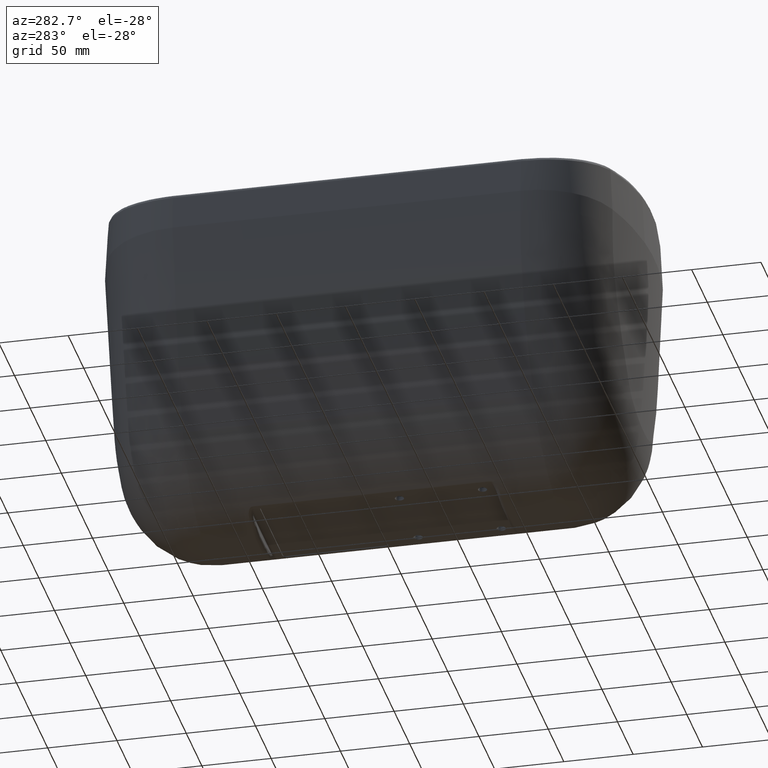
[diagram: clean part render]
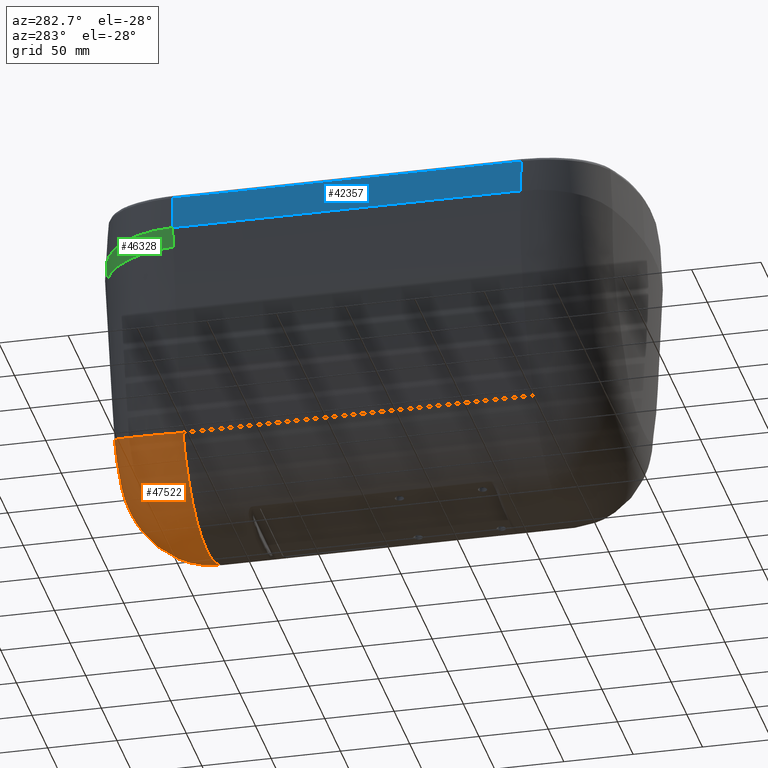
[diagram: same view with three faces highlighted in distinct colors, each labeled with its STEP entity id]
A machine part, auxiliary view with three faces highlighted in distinct colors.
Their STEP definitions:

[orange] entity #47522 — the highlighted face is a freeform B-spline surface patch.
#30 = CARTESIAN_POINT ( 'NONE',  ( -8.356609729435103162, 178.7378432442207270, 82.35189165917812204 ) ) ;
#33 = VERTEX_POINT ( 'NONE', #10194 ) ;
#93 = CARTESIAN_POINT ( 'NONE',  ( 11.99914758872700737, 238.4567949841419932, 140.1456955980215184 ) ) ;
#345 = CARTESIAN_POINT ( 'NONE',  ( -25.69821328772304625, 178.6053747279220829, 85.61473924286335091 ) ) ;
#399 = CARTESIAN_POINT ( 'NONE',  ( 19.82179163720726578, 238.0918920766039548, 142.5243388657668788 ) ) ;
#656 = CARTESIAN_POINT ( 'NONE',  ( 68.29882048393949390, 177.7858122185426737, 111.8070781136158303 ) ) ;
#716 = CARTESIAN_POINT ( 'NONE',  ( 26.10110422733500002, 237.6806247858925758, 145.5552018956837230 ) ) ;
#787 = CIRCLE ( 'NONE', #62577, 60.00000000000017053 ) ;
#807 = CARTESIAN_POINT ( 'NONE',  ( -29.03025176473818902, 237.4608524363164292, 147.3636871278205831 ) ) ;
#971 = CARTESIAN_POINT ( 'NONE',  ( 68.07137316774266367, 177.7914235830023699, 111.5625866501684840 ) ) ;
#1033 = CARTESIAN_POINT ( 'NONE',  ( 35.68553931012947089, 236.9103020670223430, 153.2186687049396880 ) ) ;
#1127 = CARTESIAN_POINT ( 'NONE',  ( -65.52577416411179456, 177.8542120993895139, 108.8053185208835458 ) ) ;
#1291 = CARTESIAN_POINT ( 'NONE',  ( 74.49531063799382480, 177.6337440974745050, 119.0615013108570679 ) ) ;
#1354 = CARTESIAN_POINT ( 'NONE',  ( 9.240399843247717016, 238.5439887203830551, 139.6109537909586038 ) ) ;
#1658 = CARTESIAN_POINT ( 'NONE',  ( -31.71994218773083318, 237.2417055706836777, 149.4374117347017830 ) ) ;
#1779 = CARTESIAN_POINT ( 'NONE',  ( -41.29650359216168454, 178.3805073719095731, 91.54367287190454761 ) ) ;
#1983 = CARTESIAN_POINT ( 'NONE',  ( -29.51087996153707493, 237.4206237487736360, 147.7466123806438816 ) ) ;
#2101 = CARTESIAN_POINT ( 'NONE',  ( 30.44364865150281219, 237.3470389657274495, 148.3832084939375875 ) ) ;
#2351 = CARTESIAN_POINT ( 'NONE',  ( -69.10905732830528336, 177.7658272156934061, 112.6908660159244846 ) ) ;
#2419 = CARTESIAN_POINT ( 'NONE',  ( 52.23241189137571894, 178.1645660663755280, 97.90305462514852763 ) ) ;
#2618 = CARTESIAN_POINT ( 'NONE',  ( -28.16629217424036469, 237.5257508376925273, 146.8285486036618863 ) ) ;
#2728 = CARTESIAN_POINT ( 'NONE',  ( -8.613161386113747042, 178.7401546675445729, 82.30053761024456094 ) ) ;
#2931 = CARTESIAN_POINT ( 'NONE',  ( -31.80310951166093147, 237.2348412980680337, 149.5060697768892339 ) ) ;
#2978 = CARTESIAN_POINT ( 'NONE',  ( -78.85715913692804691, 177.5323525168562355, 125.5529765013814796 ) ) ;
#3050 = CARTESIAN_POINT ( 'NONE',  ( -4.008552066298440408, 238.6523142779094542, 138.9670959771395644 ) ) ;
#3253 = CARTESIAN_POINT ( 'NONE',  ( -19.24636826107417065, 238.1237709001973712, 142.3097347192446023 ) ) ;
#3295 = CARTESIAN_POINT ( 'NONE',  ( -60.34926128272552859, 177.9787396995295126, 104.1916314549005307 ) ) ;
#3352 = CARTESIAN_POINT ( 'NONE',  ( 5.698535679288098343, 238.6218953460856085, 139.1452468938524305 ) ) ;
#3566 = CARTESIAN_POINT ( 'NONE',  ( -16.22231540458919952, 238.2798575007390411, 141.2732703954705187 ) ) ;
#3890 = CARTESIAN_POINT ( 'NONE',  ( -2.771346740054393187, 238.6590081537335379, 138.9274849257798792 ) ) ;
#3930 = CARTESIAN_POINT ( 'NONE',  ( -48.71065201909603104, 178.2361351225804356, 95.75065592255177194 ) ) ;
#3990 = CARTESIAN_POINT ( 'NONE',  ( 6.188451601845880390, 238.6130968994292800, 139.1973382719241386 ) ) ;
#4206 = CARTESIAN_POINT ( 'NONE',  ( -8.520755868152775747, 238.5619435219322497, 139.5066591760454457 ) ) ;
#4253 = CARTESIAN_POINT ( 'NONE',  ( 25.16936946107423978, 178.6113320467006815, 85.46476588711529132 ) ) ;
#4560 = CARTESIAN_POINT ( 'NONE',  ( -26.85267878323819346, 178.5919767561847209, 85.95220833889871415 ) ) ;
#4621 = CARTESIAN_POINT ( 'NONE',  ( 6.417484885078757806, 238.6087642246419591, 139.2230217147114502 ) ) ;
#4881 = CARTESIAN_POINT ( 'NONE',  ( -10.46257935078042678, 178.7288882527476801, 82.56483461160958370 ) ) ;
#4942 = CARTESIAN_POINT ( 'NONE',  ( 37.36164856560456116, 236.7728369421467960, 155.2296541787534920 ) ) ;
#5195 = CARTESIAN_POINT ( 'NONE',  ( -49.36260667152334491, 178.2227582739471643, 96.15412447818719954 ) ) ;
#5254 = CARTESIAN_POINT ( 'NONE',  ( 24.36775074462318003, 237.8032068245078676, 144.6068532074451412 ) ) ;
#5507 = CARTESIAN_POINT ( 'NONE',  ( 58.50924701133732952, 178.0218139474591226, 102.6672708082032557 ) ) ;
#5563 = CARTESIAN_POINT ( 'NONE',  ( 32.72358169600294531, 237.1585227109183904, 150.2912784277929461 ) ) ;
#5827 = CARTESIAN_POINT ( 'NONE',  ( 59.02429380229824574, 178.0098258747813986, 103.0864945398567585 ) ) ;
#5884 = CARTESIAN_POINT ( 'NONE',  ( 35.68558644008918890, 236.9102981317334411, 153.2187206882006762 ) ) ;
#5977 = CARTESIAN_POINT ( 'NONE',  ( -35.43233561265508769, 234.3812725071525449, 88.85921384581253335 ) ) ;
#6204 = CARTESIAN_POINT ( 'NONE',  ( 35.83090270729898208, 236.8981905796376566, 153.3808038318655633 ) ) ;
#6499 = CARTESIAN_POINT ( 'NONE',  ( -31.61668043743034318, 237.2502220319075548, 149.3523941549221945 ) ) ;
#6775 = CARTESIAN_POINT ( 'NONE',  ( 49.56660966718661143, 178.2187452364850913, 96.27354354055201213 ) ) ;
#6810 = CARTESIAN_POINT ( 'NONE',  ( -29.16325976623350513, 237.4481106784027133, 147.5017375719192501 ) ) ;
#7128 = CARTESIAN_POINT ( 'NONE',  ( -34.42632477949241832, 237.0157471389924524, 151.8651549750143488 ) ) ;
#7204 = CARTESIAN_POINT ( 'NONE',  ( 82.98892329264937473, 177.4483188869874652, 132.8417682641259603 ) ) ;
#7239 = CARTESIAN_POINT ( 'NONE',  ( 9.824497425057780120, 238.5317250507614233, 139.6885066157705921 ) ) ;
#7449 = CARTESIAN_POINT ( 'NONE',  ( -31.85452162667694864, 237.2305943942271824, 149.5486228059067173 ) ) ;
#7472 = CARTESIAN_POINT ( 'NONE',  ( 38.31144041404096612, 236.6981624156462374, 156.5240854501115280 ) ) ;
#7765 = CARTESIAN_POINT ( 'NONE',  ( -35.77026001587612569, 236.9031706273804900, 153.3057663753950521 ) ) ;
#7813 = CARTESIAN_POINT ( 'NONE',  ( -68.42361118416430088, 177.7827343374216298, 111.9418940096296637 ) ) ;
#7881 = CARTESIAN_POINT ( 'NONE',  ( 74.09054942279881573, 177.6429719785025441, 118.0532047334085490 ) ) ;
#7965 = VERTEX_POINT ( 'NONE', #21134 ) ;
#8086 = CARTESIAN_POINT ( 'NONE',  ( -6.588468263841231298, 238.6068256470684048, 139.2371469374431854 ) ) ;
#8135 = CARTESIAN_POINT ( 'NONE',  ( -68.50828113547336784, 177.7806458683036226, 112.0336520463738452 ) ) ;
#8408 = CARTESIAN_POINT ( 'NONE',  ( -23.57606220694902888, 237.8569862205298762, 144.2037289672453824 ) ) ;
#8450 = CARTESIAN_POINT ( 'NONE',  ( -59.97784353840775395, 177.9874936877782261, 103.8768084166491548 ) ) ;
#8523 = CARTESIAN_POINT ( 'NONE',  ( 4.533120516609243644, 235.6910522558075058, 81.99828543797757163 ) ) ;
#8716 = CARTESIAN_POINT ( 'NONE',  ( -12.85601776218024916, 238.4253297255926611, 140.3447909249087786 ) ) ;
#9042 = CARTESIAN_POINT ( 'NONE',  ( -14.89780589757324947, 238.3409727189547596, 140.8785231727618736 ) ) ;
#9084 = CARTESIAN_POINT ( 'NONE',  ( 22.57326704663237038, 178.6388533273572534, 84.77477572474366241 ) ) ;
#9193 =( BOUNDED_SURFACE ( )  B_SPLINE_SURFACE ( 3, 2, ( 
 ( #36262, #21116, #10489 ),
 ( #49815, #11435, #59817 ),
 ( #20473, #26572, #44997 ),
 ( #31402, #50780, #1127 ),
 ( #807, #20154, #31088 ),
 ( #25930, #51097, #26241 ),
 ( #40123, #15617, #35296 ),
 ( #54994, #11106, #60119 ),
 ( #10799, #30454, #1779 ),
 ( #39802, #5977, #21447 ),
 ( #41080, #25609, #45312 ),
 ( #40438, #15926, #45629 ),
 ( #60460, #51420, #52687 ),
 ( #3050, #17537, #2728 ),
 ( #62381, #32700, #46886 ),
 ( #41403, #8523, #57200 ),
 ( #32369, #57518, #37510 ),
 ( #52049, #21765, #61097 ),
 ( #7239, #46269, #37188 ),
 ( #41714, #46583, #42364 ),
 ( #12387, #26896, #52378 ),
 ( #32054, #16896, #2419 ),
 ( #31721, #27530, #22073 ),
 ( #56258, #36572, #12061 ),
 ( #2101, #51737, #61418 ),
 ( #17224, #37826, #7881 ),
 ( #22711, #56577, #22392 ),
 ( #61739, #36884, #12696 ) ),
 .UNSPECIFIED., .F., .F., .T. ) 
 B_SPLINE_SURFACE_WITH_KNOTS ( ( 4, 2, 2, 2, 2, 2, 2, 2, 2, 2, 2, 2, 2, 4 ),
 ( 3, 3 ),
 ( 0.0000000000000000000, 0.1250000000000000000, 0.1875000000000000000, 0.2500000000000000000, 0.3125000000000000000, 0.3750000000000000000, 0.4375000000000000000, 0.5000000000000000000, 0.5625000000000000000, 0.6250000000000000000, 0.7500000000000000000, 0.8125000000000000000, 0.8750000000000000000, 1.000000000000000000 ),
 ( 0.0000000000000000000, 1.000000000000000000 ),
 .UNSPECIFIED. ) 
 GEOMETRIC_REPRESENTATION_ITEM ( )  RATIONAL_B_SPLINE_SURFACE ( (
 ( 1.000000000000000000, 0.7610631982911010285, 1.000000000000000000),
 ( 1.000000000000000000, 0.7582905065582149495, 1.000000000000000000),
 ( 1.000000000000000000, 0.7546436458247970380, 1.000000000000000000),
 ( 1.000000000000000000, 0.7486570151162530440, 1.000000000000000000),
 ( 1.000000000000000000, 0.7465650749523590202, 1.000000000000000000),
 ( 1.000000000000000000, 0.7424750316851910226, 1.000000000000000000),
 ( 1.000000000000000000, 0.7404632805369290027, 1.000000000000000000),
 ( 1.000000000000000000, 0.7366449619953280292, 1.000000000000000000),
 ( 1.000000000000000000, 0.7348320347848309453, 1.000000000000000000),
 ( 1.000000000000000000, 0.7315779320212090209, 1.000000000000000000),
 ( 1.000000000000000000, 0.7301617568582370321, 1.000000000000000000),
 ( 1.000000000000000000, 0.7278368164283790520, 1.000000000000000000),
 ( 1.000000000000000000, 0.7269278738270309459, 1.000000000000000000),
 ( 1.000000000000000000, 0.7256944887755070184, 1.000000000000000000),
 ( 1.000000000000000000, 0.7253759701025900286, 1.000000000000000000),
 ( 1.000000000000000000, 0.7253727842152649652, 1.000000000000000000),
 ( 1.000000000000000000, 0.7256812352238489749, 1.000000000000000000),
 ( 1.000000000000000000, 0.7268923655680920026, 1.000000000000000000),
 ( 1.000000000000000000, 0.7278029741766079974, 1.000000000000000000),
 ( 1.000000000000000000, 0.7313152109039909865, 1.000000000000000000),
 ( 1.000000000000000000, 0.7346408664462019678, 1.000000000000000000),
 ( 1.000000000000000000, 0.7404061963985359984, 1.000000000000000000),
 ( 1.000000000000000000, 0.7424498854873230469, 1.000000000000000000),
 ( 1.000000000000000000, 0.7465306470970139996, 1.000000000000000000),
 ( 1.000000000000000000, 0.7485821506141040471, 1.000000000000000000),
 ( 1.000000000000000000, 0.7545563303009420464, 1.000000000000000000),
 ( 1.000000000000000000, 0.7583150266325430211, 1.000000000000000000),
 ( 1.000000000000000000, 0.7610631982911010285, 1.000000000000000000) ) ) 
 REPRESENTATION_ITEM ( '' )  SURFACE ( )  );
#9406 = CARTESIAN_POINT ( 'NONE',  ( -25.34405903696672624, 178.6093769573539873, 85.51397600573639579 ) ) ;
#9721 = CARTESIAN_POINT ( 'NONE',  ( 28.70426026251554319, 178.5718170729978453, 86.45922785572993519 ) ) ;
#9785 = CARTESIAN_POINT ( 'NONE',  ( 24.45765630092467902, 237.7970062345978022, 144.6538280603151918 ) ) ;
#10029 = CARTESIAN_POINT ( 'NONE',  ( -48.92230900384691239, 178.2318142962554361, 95.88082872009826474 ) ) ;
#10043 = EDGE_CURVE ( 'NONE', #7965, #46041, #44734, .T. ) ;
#10083 = CARTESIAN_POINT ( 'NONE',  ( 24.80169355019150856, 237.7731780894810356, 144.8349407025474704 ) ) ;
#10194 = CARTESIAN_POINT ( 'NONE',  ( -38.62291730448687588, 236.6748206272834523, 156.9902970483955187 ) ) ;
#10344 = CARTESIAN_POINT ( 'NONE',  ( 46.74536386492031426, 178.2755290327962996, 94.57402962401397417 ) ) ;
#10401 = CARTESIAN_POINT ( 'NONE',  ( 15.76934935055396636, 238.3011027295546285, 141.1330107860980263 ) ) ;
#10489 = CARTESIAN_POINT ( 'NONE',  ( -82.98892329264909051, 177.4483188869874652, 132.8417682641255624 ) ) ;
#10652 = CARTESIAN_POINT ( 'NONE',  ( 67.17373191920043496, 177.8135836873005644, 110.6138032442633374 ) ) ;
#10710 = CARTESIAN_POINT ( 'NONE',  ( 24.43114005333751138, 237.7988365960080159, 144.6399521722762529 ) ) ;
#10799 = CARTESIAN_POINT ( 'NONE',  ( -19.21932927813508840, 238.1294088671874078, 142.2652185731445513 ) ) ;
#11015 = CARTESIAN_POINT ( 'NONE',  ( 24.01941630374778569, 237.8270682810197911, 144.4270042806593040 ) ) ;
#11106 = CARTESIAN_POINT ( 'NONE',  ( -47.36307490533059195, 233.3324077987304577, 94.78082408836053219 ) ) ;
#11275 = CARTESIAN_POINT ( 'NONE',  ( 68.24875930347529618, 177.7870469916968830, 111.7531365527515277 ) ) ;
#11435 = CARTESIAN_POINT ( 'NONE',  ( -79.96660830596907488, 229.0757373874994869, 126.6734639951325505 ) ) ;
#11595 = CARTESIAN_POINT ( 'NONE',  ( 48.56391261573578788, 178.2391200896961436, 95.66082180369282639 ) ) ;
#11638 = CARTESIAN_POINT ( 'NONE',  ( -32.85433562680233166, 237.1476109410754702, 150.3987696631218967 ) ) ;
#11944 = CARTESIAN_POINT ( 'NONE',  ( -27.89390314911350899, 237.5466459540000130, 146.6516323460211879 ) ) ;
#12061 = CARTESIAN_POINT ( 'NONE',  ( 62.32383960290591318, 177.9328076530025555, 105.7897762043345296 ) ) ;
#12272 = CARTESIAN_POINT ( 'NONE',  ( -35.49141499419226875, 236.9264216140860526, 152.9988145566159119 ) ) ;
#12295 = CARTESIAN_POINT ( 'NONE',  ( 38.50932090208902281, 236.6833101821859771, 156.8196976389469057 ) ) ;
#12315 = CARTESIAN_POINT ( 'NONE',  ( -68.46492772929909165, 177.7817152253309700, 111.9866429415958891 ) ) ;
#12387 = CARTESIAN_POINT ( 'NONE',  ( 19.20958482752221030, 238.1401388756834194, 142.1448642654685841 ) ) ;
#12589 = CARTESIAN_POINT ( 'NONE',  ( -28.04426866117818662, 237.5351364582997462, 146.7487734694151982 ) ) ;
#12633 = CARTESIAN_POINT ( 'NONE',  ( -82.07128734430581574, 177.4648589971527031, 131.0418908614740019 ) ) ;
#12696 = CARTESIAN_POINT ( 'NONE',  ( 82.98892329264901946, 177.4483188869874652, 132.8417682641255624 ) ) ;
#12950 = CARTESIAN_POINT ( 'NONE',  ( -76.44234108545765594, 177.5875886523986935, 121.9177872978415706 ) ) ;
#13226 = CARTESIAN_POINT ( 'NONE',  ( -23.27136969906479180, 237.8772688893466523, 144.0539037857755034 ) ) ;
#13271 = CARTESIAN_POINT ( 'NONE',  ( -59.13686745344639206, 178.0071971100335873, 103.1788386732248739 ) ) ;
#13544 = CARTESIAN_POINT ( 'NONE',  ( -21.25269715871091236, 238.0070819546884309, 143.1150387899342888 ) ) ;
#13584 = CARTESIAN_POINT ( 'NONE',  ( -76.42728127478378042, 177.5879415963356109, 121.8961729227911945 ) ) ;
#13844 = CARTESIAN_POINT ( 'NONE',  ( -8.969559286918366681, 238.5502304667199382, 139.5774543655009836 ) ) ;
#13886 = CARTESIAN_POINT ( 'NONE',  ( -25.36444944750225972, 178.6091479372806248, 85.51974196622003888 ) ) ;
#14176 = CARTESIAN_POINT ( 'NONE',  ( -16.07155983554289591, 238.2870255653239440, 141.2266674661400998 ) ) ;
#14211 = CARTESIAN_POINT ( 'NONE',  ( -32.58091413304574502, 178.5171351375384745, 87.86130406442134699 ) ) ;
#14273 = CARTESIAN_POINT ( 'NONE',  ( 6.324031961673013846, 238.6105495653839341, 139.2124348711439268 ) ) ;
#14488 = CARTESIAN_POINT ( 'NONE',  ( -16.31387933702918858, 238.2754859341043812, 141.3017185171872825 ) ) ;
#14532 = CARTESIAN_POINT ( 'NONE',  ( -48.70589836794948013, 178.2362319369396459, 95.74773993249833381 ) ) ;
#14834 = CARTESIAN_POINT ( 'NONE',  ( -48.75753144495976699, 178.2351798102819771, 95.77943066630156466 ) ) ;
#14894 = CARTESIAN_POINT ( 'NONE',  ( 16.66751729238256274, 238.2588554928400981, 141.4074651590352687 ) ) ;
#15153 = CARTESIAN_POINT ( 'NONE',  ( 24.76312603156899073, 178.6158328446582004, 85.35156958721822207 ) ) ;
#15217 = CARTESIAN_POINT ( 'NONE',  ( 15.27958019096118569, 238.3234469147970742, 140.9887131239643168 ) ) ;
#15462 = CARTESIAN_POINT ( 'NONE',  ( 68.27799529580533999, 177.7863258555612447, 111.7846297644749001 ) ) ;
#15523 = CARTESIAN_POINT ( 'NONE',  ( 7.810173574246149109, 238.5794111105941795, 139.3978950248020396 ) ) ;
#15617 = CARTESIAN_POINT ( 'NONE',  ( -54.59234332075449458, 232.5545282310634434, 99.50144328451453646 ) ) ;
#15770 = CARTESIAN_POINT ( 'NONE',  ( 65.89773933146896923, 177.8450275692531761, 109.3063830807752197 ) ) ;
#15831 = CARTESIAN_POINT ( 'NONE',  ( 36.93802591485984266, 236.8070262510756550, 154.6900784709830532 ) ) ;
#15926 = CARTESIAN_POINT ( 'NONE',  ( -22.67284843816058526, 235.1676078698284300, 84.67815403921956374 ) ) ;
#16092 = CARTESIAN_POINT ( 'NONE',  ( 58.99477929019068512, 178.0105145931393338, 103.0623309761662370 ) ) ;
#16125 = DIRECTION ( 'NONE',  ( -0.4540875050644065380, 0.02299789865196168182, -0.8906602238800027660 ) ) ;
#16158 = CARTESIAN_POINT ( 'NONE',  ( 15.91402953484340621, 238.2943775640358126, 141.1765956519220708 ) ) ;
#16457 = CARTESIAN_POINT ( 'NONE',  ( -30.07493115519371685, 237.3755907494322912, 148.1561012004922873 ) ) ;
#16738 = CARTESIAN_POINT ( 'NONE',  ( 82.98892329264937473, 177.4483188869874652, 132.8417682641259603 ) ) ;
#16874 = AXIS2_PLACEMENT_3D ( 'NONE', #27191, #42992, #18489 ) ;
#16896 = CARTESIAN_POINT ( 'NONE',  ( 54.49403765285401136, 232.5660737922784449, 99.42859645124757151 ) ) ;
#17105 = CARTESIAN_POINT ( 'NONE',  ( -35.47940679275190234, 236.9274237511886838, 152.9856903635904644 ) ) ;
#17130 = CARTESIAN_POINT ( 'NONE',  ( 37.86556240135427487, 236.7328396826174526, 155.9015131168409312 ) ) ;
#17148 = CARTESIAN_POINT ( 'NONE',  ( -69.39731059878009489, 177.7587183368019907, 113.0118073701117254 ) ) ;
#17224 = CARTESIAN_POINT ( 'NONE',  ( 34.48162778662750583, 237.0138411573304325, 151.7195856900665376 ) ) ;
#17424 = CARTESIAN_POINT ( 'NONE',  ( -35.42786103286746169, 236.9317264766178255, 152.9294457155386908 ) ) ;
#17537 = CARTESIAN_POINT ( 'NONE',  ( -9.229377911328457529, 235.6224493069254606, 82.34412114277357375 ) ) ;
#17748 = CARTESIAN_POINT ( 'NONE',  ( -35.37451746445071166, 236.9361832492638200, 152.8716119229591186 ) ) ;
#18384 = CARTESIAN_POINT ( 'NONE',  ( -11.95740570959017823, 238.4583558070142431, 140.1397205193564730 ) ) ;
#18489 = DIRECTION ( 'NONE',  ( -0.8908958539379464581, 0.0000000000000000000, -0.4542076369196991203 ) ) ;
#18699 = CARTESIAN_POINT ( 'NONE',  ( -1.673530197073406445, 238.6664217672055202, 138.8838217694035677 ) ) ;
#18741 = CARTESIAN_POINT ( 'NONE',  ( -48.70604745891454002, 178.2362289015313195, 95.74783135502272557 ) ) ;
#19015 = CARTESIAN_POINT ( 'NONE',  ( -23.33320396465530777, 237.8731678143174690, 144.0841268546701031 ) ) ;
#19060 = CARTESIAN_POINT ( 'NONE',  ( 32.43818993658562988, 178.5214061090902078, 87.72663556038340005 ) ) ;
#19345 = CARTESIAN_POINT ( 'NONE',  ( -23.98524720966109669, 237.8295079535741650, 144.4078923903814200 ) ) ;
#19381 = CARTESIAN_POINT ( 'NONE',  ( 20.98009753528391386, 178.6544187776121646, 84.38677186843830214 ) ) ;
#19703 = CARTESIAN_POINT ( 'NONE',  ( -49.80309988109414121, 178.2136297968191911, 96.43051133590890345 ) ) ;
#19758 = CARTESIAN_POINT ( 'NONE',  ( 15.46047671555784042, 238.3152522977075023, 141.0415507129091566 ) ) ;
#20008 = CARTESIAN_POINT ( 'NONE',  ( -25.32517695188734663, 178.6095889253633686, 85.50863935018708162 ) ) ;
#20067 = CARTESIAN_POINT ( 'NONE',  ( 32.15153204082835714, 237.2060479767991978, 149.7981373691606279 ) ) ;
#20154 = CARTESIAN_POINT ( 'NONE',  ( -64.37269992771157945, 231.3342346955774929, 107.6351252140495518 ) ) ;
#20380 = CARTESIAN_POINT ( 'NONE',  ( 28.12585626479233269, 237.5315855736797062, 146.7536085322895758 ) ) ;
#20473 = CARTESIAN_POINT ( 'NONE',  ( -34.53787401750629016, 237.0090447371264304, 151.7742422816505723 ) ) ;
#20641 = CARTESIAN_POINT ( 'NONE',  ( 48.45766407600196146, 178.2412769341088961, 95.59599241616172094 ) ) ;
#20706 = CARTESIAN_POINT ( 'NONE',  ( 35.71026442896570785, 236.9082395701715029, 153.2460925631461350 ) ) ;
#20960 = CARTESIAN_POINT ( 'NONE',  ( 79.33297551340071152, 177.5213146965905651, 126.1420274478076919 ) ) ;
#21017 = CARTESIAN_POINT ( 'NONE',  ( 10.17517685983922604, 238.5168520028889247, 139.7758032252793612 ) ) ;
#21116 = CARTESIAN_POINT ( 'NONE',  ( -83.52312111118358473, 228.5746516162944317, 133.8895591488025900 ) ) ;
#21134 = CARTESIAN_POINT ( 'NONE',  ( -9.254454714753848546E-08, 238.6705966188280570, 138.8595510589067317 ) ) ;
#21324 = CARTESIAN_POINT ( 'NONE',  ( -35.56452128167515525, 236.9203221366390437, 153.0788817073125472 ) ) ;
#21447 = CARTESIAN_POINT ( 'NONE',  ( -33.42612656837718532, 178.5079383688855614, 88.09772873218551581 ) ) ;
#21612 = CARTESIAN_POINT ( 'NONE',  ( 59.01358292684064111, 178.0100758432513146, 103.0777230333878691 ) ) ;
#21765 = CARTESIAN_POINT ( 'NONE',  ( 18.06125181618261522, 235.3677579161184781, 83.64781571371352697 ) ) ;
#21963 = CARTESIAN_POINT ( 'NONE',  ( -33.28876030658084773, 237.1112059402314003, 150.7931094866354442 ) ) ;
#22005 = CARTESIAN_POINT ( 'NONE',  ( -68.59481115673361273, 177.7785115069856943, 112.1276448881583576 ) ) ;
#22073 = CARTESIAN_POINT ( 'NONE',  ( 55.74673854381581606, 178.0863308044475275, 100.4012282093385267 ) ) ;
#22123 = B_SPLINE_CURVE_WITH_KNOTS ( 'NONE', 3,
 ( #27141, #12633, #36816, #62625, #2978, #52614, #57756, #22639, #61670, #56510, #57137, #12950, #13584, #52927, #52304, #37752, #27460, #61345, #46516, #42296, #41649, #17148, #2351, #46821, #22005, #8135, #12315, #61995, #22317, #37123, #7813, #32304, #47140, #37443, #32945, #27777, #47448, #3295, #8450, #42612, #62313, #57449, #13271, #28088, #49362, #33879, #29685, #38704, #48404, #63576, #48714, #19703, #5195, #43252, #10029, #34828, #14834, #24201, #59341, #3930, #33570, #14532, #18741, #23582, #38384, #54528, #14211, #28406, #39345, #58073, #4560, #59026, #345, #48076, #53578, #13886, #9406, #24842, #20008, #62945, #29051, #4881, #30, #44525, #43895, #53252, #43570, #24528, #44213, #39660, #19381, #9084, #34192, #58399, #15153, #63255, #28738, #4253, #23886, #53897, #39028, #9721, #19060, #58722, #34504, #29368, #54214, #49040, #10344, #49984, #29997, #50628, #20641, #44834, #60936, #30619, #11595, #59971, #49674, #6775, #55480, #60294, #45793, #55153, #25134, #31242, #50305, #5507, #40923, #36423, #35139, #16092, #21612, #5827, #30934, #54840, #26411, #15770, #55794, #10652, #25454, #45160, #971, #40287, #11275, #15462, #45469, #656, #60627, #30304, #50943, #1291, #20960, #35456, #16738 ),
 .UNSPECIFIED., .F., .F.,
 ( 4, 2, 2, 1, 1, 1, 1, 1, 1, 2, 2, 2, 2, 2, 1, 1, 1, 1, 1, 1, 2, 2, 2, 2, 2, 1, 1, 1, 1, 1, 2, 2, 2, 2, 2, 1, 1, 1, 1, 1, 1, 1, 2, 2, 2, 2, 2, 1, 1, 1, 1, 1, 1, 2, 2, 2, 2, 2, 2, 2, 2, 1, 1, 1, 1, 1, 1, 2, 2, 2, 2, 2, 1, 1, 1, 1, 1, 1, 1, 1, 2, 2, 2, 2, 2, 1, 1, 1, 1, 1, 2, 2, 2, 2, 2, 1, 1, 1, 1, 1, 1, 2, 2, 2, 4 ),
 ( 0.0000000000000000000, 0.03124999999978442244, 0.04687499999967681408, 0.05468749999962284336, 0.05859374999959598984, 0.06054687499958254920, 0.06152343749957576990, 0.06201171874957230046, 0.06225585937457064900, 0.06237792968706981633, 0.06249999999956899754, 0.09374999999938182782, 0.1093749999992883054, 0.1171874999992416067, 0.1210937499992181393, 0.1230468749992063987, 0.1240234374992005145, 0.1245117187491976557, 0.1247558593741962818, 0.1248779296866956712, 0.1249389648429452965, 0.1249999999991949218, 0.1562499999991333044, 0.1718749999991025512, 0.1796874999990873412, 0.1835937499990798194, 0.1855468749990760169, 0.1865234374990741018, 0.1870117187490730193, 0.1872558593740724642, 0.1873779296865721034, 0.1874999999990717703, 0.2187499999989879207, 0.2343749999989459820, 0.2421874999989249710, 0.2460937499989145349, 0.2480468749989093169, 0.2490234374989067079, 0.2495117187489054589, 0.2497558593739050425, 0.2498779296864047095, 0.2499389648426545707, 0.2499694824207795985, 0.2499999999989045985, 0.3124999999989503396, 0.3437499999989731547, 0.3593749999989846455, 0.3671874999989903632, 0.3710937499989931387, 0.3730468749989945820, 0.3740234374989952482, 0.3745117187489956367, 0.3747558593739958033, 0.3748779296864959143, 0.3749999999989960253, 0.4374999999990634159, 0.4687499999990971111, 0.4999999999991308064, 0.5624999999991980859, 0.5937499999992318367, 0.6093749999992487121, 0.6171874999992570388, 0.6210937499992613686, 0.6230468749992633670, 0.6240234374992644772, 0.6245117187492649213, 0.6247558593742652544, 0.6248779296867653654, 0.6249999999992653654, 0.6874999999992909006, 0.7187499999993037791, 0.7343749999993101074, 0.7421874999993132160, 0.7460937499993148814, 0.7480468749993155475, 0.7490234374993159916, 0.7495117187493159916, 0.7497558593743159916, 0.7498779296868161026, 0.7499389648430659916, 0.7499694824211909916, 0.7499999999993159916, 0.7812499999994036992, 0.7968749999994474420, 0.8046874999994693134, 0.8085937499994801936, 0.8105468749994857447, 0.8115234374994885203, 0.8120117187494899635, 0.8122558593744906297, 0.8123779296869908517, 0.8124999999994910738, 0.8437499999995728972, 0.8593749999996136424, 0.8671874999996338484, 0.8710937499996439515, 0.8730468749996489475, 0.8740234374996515010, 0.8745117187496526112, 0.8747558593746531663, 0.8748779296871536104, 0.8749389648434037214, 0.8749999999996538325, 0.9374999999998269162, 1.000000000000000000 ),
 .UNSPECIFIED. ) ;
#22273 = CARTESIAN_POINT ( 'NONE',  ( -35.50056096569412034, 236.9256583920117123, 153.0088148570631006 ) ) ;
#22317 = CARTESIAN_POINT ( 'NONE',  ( -68.43392467583439043, 177.7824799456444111, 111.9530598470890794 ) ) ;
#22392 = CARTESIAN_POINT ( 'NONE',  ( 79.09460889414300766, 177.5185127253735686, 125.2033485865335365 ) ) ;
#22594 = CARTESIAN_POINT ( 'NONE',  ( -28.40130160978601026, 237.5076247526147881, 146.9832688317521843 ) ) ;
#22639 = CARTESIAN_POINT ( 'NONE',  ( -76.96450877812375779, 177.5754047030035281, 122.6742549527109816 ) ) ;
#22711 = CARTESIAN_POINT ( 'NONE',  ( 36.81109136285091665, 236.8102262870764321, 154.2692915506445672 ) ) ;
#22913 = CARTESIAN_POINT ( 'NONE',  ( -23.22347812652358456, 237.8804374115787823, 144.0305865022783962 ) ) ;
#23011 = CARTESIAN_POINT ( 'NONE',  ( 6.569895181008586604, 238.6058238228802963, 139.2404655137465852 ) ) ;
#23227 = CARTESIAN_POINT ( 'NONE',  ( -23.36616736058967092, 237.8709793081698081, 144.1002650668146714 ) ) ;
#23539 = CARTESIAN_POINT ( 'NONE',  ( -9.298425688703224168, 238.5413251793086147, 139.6314056585264893 ) ) ;
#23582 = CARTESIAN_POINT ( 'NONE',  ( -44.50781750972815587, 178.3217230132098052, 93.17281803066619261 ) ) ;
#23843 = CARTESIAN_POINT ( 'NONE',  ( -9.957850781935610129, 238.5228330427934225, 139.7436990111940815 ) ) ;
#23886 = CARTESIAN_POINT ( 'NONE',  ( 25.19423910092338659, 178.6110544488461187, 85.47175135962311288 ) ) ;
#24160 = CARTESIAN_POINT ( 'NONE',  ( -24.29181390493433312, 237.8085371164633273, 144.5656644974720848 ) ) ;
#24201 = CARTESIAN_POINT ( 'NONE',  ( -48.73067783582651202, 178.2357271571784736, 95.76294384955293992 ) ) ;
#24528 = CARTESIAN_POINT ( 'NONE',  ( 14.61244494029786090, 178.7055460334373436, 83.12854749647851804 ) ) ;
#24589 = CARTESIAN_POINT ( 'NONE',  ( 37.43988032026238244, 236.7665812112167316, 155.3319875280742508 ) ) ;
#24607 = EDGE_CURVE ( 'NONE', #40131, #33, #40517, .T. ) ;
#24842 = CARTESIAN_POINT ( 'NONE',  ( -25.33046739401995495, 178.6095295488363206, 85.51013425634242537 ) ) ;
#24891 = CARTESIAN_POINT ( 'NONE',  ( 18.94388174394364199, 238.1409038698875520, 142.1917460911350872 ) ) ;
#25134 = CARTESIAN_POINT ( 'NONE',  ( 56.71337063482882712, 178.0630528360346148, 101.2506329397489537 ) ) ;
#25194 = CARTESIAN_POINT ( 'NONE',  ( 15.61498231548500293, 238.3081912748701541, 141.0871684848113716 ) ) ;
#25454 = CARTESIAN_POINT ( 'NONE',  ( 67.61450334710497145, 177.8027023936948012, 111.0767939951864776 ) ) ;
#25485 = DIRECTION ( 'NONE',  ( -0.8908958539379465691, 0.0000000000000000000, 0.4542076369196990093 ) ) ;
#25513 = CARTESIAN_POINT ( 'NONE',  ( 15.55066603182296525, 238.3111374618391665, 141.0681246163377409 ) ) ;
#25609 = CARTESIAN_POINT ( 'NONE',  ( -31.26001805608898465, 234.6778147419724689, 87.26635526847356061 ) ) ;
#25835 = CARTESIAN_POINT ( 'NONE',  ( 37.27936318501685520, 236.7794468708929969, 155.1233784277179382 ) ) ;
#25930 = CARTESIAN_POINT ( 'NONE',  ( -25.96428582578998956, 237.6928381551924190, 145.4361055415575663 ) ) ;
#26129 = CARTESIAN_POINT ( 'NONE',  ( -29.63978474453280754, 237.4103613246047644, 147.8392825075940777 ) ) ;
#26241 = CARTESIAN_POINT ( 'NONE',  ( -55.78936743054229197, 178.0853716934495026, 100.4325107780585427 ) ) ;
#26411 = CARTESIAN_POINT ( 'NONE',  ( 65.19378796522346420, 177.8623097881607293, 108.6072470432083179 ) ) ;
#26452 = CARTESIAN_POINT ( 'NONE',  ( -28.94452327931887581, 237.4653388705701502, 147.3495178891198236 ) ) ;
#26572 = CARTESIAN_POINT ( 'NONE',  ( -75.52216048423412076, 229.7639235748254691, 119.9583863511085298 ) ) ;
#26778 = CARTESIAN_POINT ( 'NONE',  ( -32.23230065246237785, 237.1993110938692553, 149.8653089183659404 ) ) ;
#26896 = CARTESIAN_POINT ( 'NONE',  ( 43.51951839532951283, 233.7439753342564757, 92.28895892103354015 ) ) ;
#27096 = CARTESIAN_POINT ( 'NONE',  ( -31.83945747588603226, 237.2318391506034345, 149.5361453871821595 ) ) ;
#27141 = CARTESIAN_POINT ( 'NONE',  ( -82.98892329264938894, 177.4483188869874652, 132.8417682641259603 ) ) ;
#27191 = CARTESIAN_POINT ( 'NONE',  ( -29.53517205637194465, 177.4483188869874084, 160.0942264793076788 ) ) ;
#27414 = CARTESIAN_POINT ( 'NONE',  ( -29.97673569583129449, 237.3834645105741856, 148.0837767274856844 ) ) ;
#27460 = CARTESIAN_POINT ( 'NONE',  ( -74.11319838291126416, 177.6430158221487545, 118.6802279897894437 ) ) ;
#27530 = CARTESIAN_POINT ( 'NONE',  ( 57.94938560902800617, 232.1539794932884888, 102.0445407893735421 ) ) ;
#27732 = CARTESIAN_POINT ( 'NONE',  ( -4.746241723221496400, 238.6380526996632341, 139.0512922558162359 ) ) ;
#27777 = CARTESIAN_POINT ( 'NONE',  ( -61.54773608163202425, 177.9503441221739877, 105.2266979887131413 ) ) ;
#28045 = CARTESIAN_POINT ( 'NONE',  ( -3.817432065052265067, 238.6499421528903895, 138.9809461342943564 ) ) ;
#28088 = CARTESIAN_POINT ( 'NONE',  ( -59.11242858320739657, 178.0077679802833472, 103.1587700699626282 ) ) ;
#28361 = CARTESIAN_POINT ( 'NONE',  ( -7.501752711724637201, 238.5875204500988502, 139.3524055522360641 ) ) ;
#28406 = CARTESIAN_POINT ( 'NONE',  ( -29.79014436205335770, 178.5551051264220916, 86.88640365829384393 ) ) ;
#28694 = CARTESIAN_POINT ( 'NONE',  ( -25.72529505600327226, 237.7091510431245922, 145.3215829114988935 ) ) ;
#28738 = CARTESIAN_POINT ( 'NONE',  ( 25.11133915079458490, 178.6119788235903911, 85.44849216806190384 ) ) ;
#29008 = CARTESIAN_POINT ( 'NONE',  ( -14.21531663928421452, 238.3700475169389676, 140.6937153972182841 ) ) ;
#29051 = CARTESIAN_POINT ( 'NONE',  ( -16.80558188356550886, 178.6930988617548053, 83.42914684051685015 ) ) ;
#29111 = CARTESIAN_POINT ( 'NONE',  ( 3.723815135124671993, 238.6543426892978630, 138.9534516520843681 ) ) ;
#29368 = CARTESIAN_POINT ( 'NONE',  ( 43.38553589957967915, 178.3394858245495698, 92.71228325763036082 ) ) ;
#29428 = CARTESIAN_POINT ( 'NONE',  ( 37.19407533741523508, 236.7863116709465885, 155.0138619348129794 ) ) ;
#29528 = ORIENTED_EDGE ( 'NONE', *, *, #50744, .T. ) ;
#29685 = CARTESIAN_POINT ( 'NONE',  ( -56.67708634457387262, 178.0646388304690220, 101.1609920895915309 ) ) ;
#29744 = CARTESIAN_POINT ( 'NONE',  ( 31.41691879753022576, 237.2667254733065363, 149.1877944260773461 ) ) ;
#29997 = CARTESIAN_POINT ( 'NONE',  ( 48.11458919400766376, 178.2482161324410583, 95.38779750066044016 ) ) ;
#30056 = CARTESIAN_POINT ( 'NONE',  ( 35.65442834443549458, 236.9128980116439607, 153.1842115107924087 ) ) ;
#30304 = CARTESIAN_POINT ( 'NONE',  ( 68.30387083498771972, 177.7856876597189739, 111.8125237365156863 ) ) ;
#30367 = CARTESIAN_POINT ( 'NONE',  ( 25.48406691015998149, 237.7252607708845744, 145.2031506426479268 ) ) ;
#30454 = CARTESIAN_POINT ( 'NONE',  ( -43.51742968510978216, 233.7056141430064429, 92.63246722163353297 ) ) ;
#30619 = CARTESIAN_POINT ( 'NONE',  ( 48.55778214246297608, 178.2392446397363415, 95.65707660375601051 ) ) ;
#30681 = CARTESIAN_POINT ( 'NONE',  ( 37.22359212691999630, 236.7839336109277042, 155.0516586710433273 ) ) ;
#30934 = CARTESIAN_POINT ( 'NONE',  ( 61.10740593392663556, 177.9612031061479058, 104.7930262422186587 ) ) ;
#31088 = CARTESIAN_POINT ( 'NONE',  ( -62.37719740025188742, 177.9315257084275288, 105.8371879428925411 ) ) ;
#31242 = CARTESIAN_POINT ( 'NONE',  ( 57.56229115834353394, 178.0436549696592294, 101.9125631332835411 ) ) ;
#31283 = CARTESIAN_POINT ( 'NONE',  ( -29.83873453035418066, 237.3944946866446912, 147.9831847918597134 ) ) ;
#31402 = CARTESIAN_POINT ( 'NONE',  ( -30.49559454968389005, 237.3428279135134176, 148.4221574197835594 ) ) ;
#31607 = CARTESIAN_POINT ( 'NONE',  ( -27.81670719027617977, 237.5525398038004425, 146.6020655867835103 ) ) ;
#31721 = CARTESIAN_POINT ( 'NONE',  ( 25.94444640735851237, 237.6942706060394244, 145.4249474895345884 ) ) ;
#31936 = CARTESIAN_POINT ( 'NONE',  ( -29.84323915430805485, 237.3941348931739697, 147.9864609179985280 ) ) ;
#32054 = CARTESIAN_POINT ( 'NONE',  ( 24.30888418656910943, 237.8108099223784109, 144.5338577128685529 ) ) ;
#32260 = CARTESIAN_POINT ( 'NONE',  ( -27.60088178833649764, 237.5689817950144516, 146.4642100178386102 ) ) ;
#32304 = CARTESIAN_POINT ( 'NONE',  ( -67.34844388016168182, 177.8092543077220284, 110.7781293987614788 ) ) ;
#32369 = CARTESIAN_POINT ( 'NONE',  ( 3.940104807245570662, 238.6530719144384136, 138.9626420382675462 ) ) ;
#32580 = CARTESIAN_POINT ( 'NONE',  ( -38.11649108268862562, 236.7126680689567877, 156.2297446669434748 ) ) ;
#32700 = CARTESIAN_POINT ( 'NONE',  ( -4.603611694576786206, 235.6903727600964658, 82.00172783753755823 ) ) ;
#32902 = CARTESIAN_POINT ( 'NONE',  ( -0.9501012868114399046, 238.6695585257313041, 138.8653571512681992 ) ) ;
#32945 = CARTESIAN_POINT ( 'NONE',  ( -62.90325712574687600, 177.9179427807578122, 106.4355389300060324 ) ) ;
#33208 = CARTESIAN_POINT ( 'NONE',  ( -19.79128826688995701, 238.0927398195243541, 142.5219159276190339 ) ) ;
#33534 = ORIENTED_EDGE ( 'NONE', *, *, #39278, .T. ) ;
#33570 = CARTESIAN_POINT ( 'NONE',  ( -48.70779936130046650, 178.2361932215827096, 95.74890601380687372 ) ) ;
#33628 = CARTESIAN_POINT ( 'NONE',  ( 6.242720535553302419, 238.6120852246689878, 139.2033327296373670 ) ) ;
#33879 = CARTESIAN_POINT ( 'NONE',  ( -59.08919799038095277, 178.0083105602447802, 103.1397019007488609 ) ) ;
#33936 = CARTESIAN_POINT ( 'NONE',  ( 6.356490551644206732, 238.6099326201288875, 139.2160924099952126 ) ) ;
#34192 = CARTESIAN_POINT ( 'NONE',  ( 23.36980550142259005, 178.6307922385999234, 84.97619343111233547 ) ) ;
#34504 = CARTESIAN_POINT ( 'NONE',  ( 40.32534237780360797, 178.3946101009981646, 91.14953956788615130 ) ) ;
#34568 = CARTESIAN_POINT ( 'NONE',  ( 24.19289493262578006, 237.8152383901965266, 144.5158646871095129 ) ) ;
#34828 = CARTESIAN_POINT ( 'NONE',  ( -48.81176127487748317, 178.2340734832538658, 95.81275764421168617 ) ) ;
#34888 = CARTESIAN_POINT ( 'NONE',  ( 34.67737991361233441, 236.9946330910366896, 152.1246516952840580 ) ) ;
#34977 = FACE_OUTER_BOUND ( 'NONE', #61401, .T. ) ;
#35139 = CARTESIAN_POINT ( 'NONE',  ( 58.96658657494619860, 178.0111723057372046, 103.0392625345942577 ) ) ;
#35199 = CARTESIAN_POINT ( 'NONE',  ( 14.70778378743771242, 238.3489765255301620, 140.8246182041672228 ) ) ;
#35296 = CARTESIAN_POINT ( 'NONE',  ( -52.33200450964998396, 178.1623785259375268, 97.97236710869452736 ) ) ;
#35456 = CARTESIAN_POINT ( 'NONE',  ( 81.32866574966438122, 177.4782445265754802, 129.5852916193353792 ) ) ;
#35516 = CARTESIAN_POINT ( 'NONE',  ( 29.64165543033454853, 237.4116704084187290, 147.7903869338890104 ) ) ;
#36150 = CARTESIAN_POINT ( 'NONE',  ( -37.30577935977252224, 236.7765858679608186, 155.1182958710523678 ) ) ;
#36262 = CARTESIAN_POINT ( 'NONE',  ( -38.62291730448689719, 236.6748206272834523, 156.9902970483955755 ) ) ;
#36423 = CARTESIAN_POINT ( 'NONE',  ( 58.90089288189124517, 178.0127040828261329, 102.9855735513573336 ) ) ;
#36463 = CARTESIAN_POINT ( 'NONE',  ( -31.89664061005684914, 237.2271134752464263, 149.5835422214811956 ) ) ;
#36572 = CARTESIAN_POINT ( 'NONE',  ( 64.32151462318340407, 231.3410399861645033, 107.5868605554935584 ) ) ;
#36771 = CARTESIAN_POINT ( 'NONE',  ( -30.75766121185096580, 237.3207337820095120, 148.6624901488533226 ) ) ;
#36816 = CARTESIAN_POINT ( 'NONE',  ( -81.06913169805726227, 177.4848035243098536, 129.2208842426864521 ) ) ;
#36884 = CARTESIAN_POINT ( 'NONE',  ( 83.52312111118362736, 228.5746516162944317, 133.8895591488025900 ) ) ;
#37080 = CARTESIAN_POINT ( 'NONE',  ( -31.83764165624111797, 237.2319892182342187, 149.5346400722187923 ) ) ;
#37123 = CARTESIAN_POINT ( 'NONE',  ( -68.42772079899810933, 177.7826329700253609, 111.9463427663515631 ) ) ;
#37188 = CARTESIAN_POINT ( 'NONE',  ( 21.10986222950381475, 178.6567331814665636, 84.32210835570653273 ) ) ;
#37397 = CARTESIAN_POINT ( 'NONE',  ( -32.07184416669316818, 237.2126224724628116, 149.7294159028648437 ) ) ;
#37443 = CARTESIAN_POINT ( 'NONE',  ( -63.73897640853854085, 177.8977363459889318, 107.2123543727528983 ) ) ;
#37510 = CARTESIAN_POINT ( 'NONE',  ( 8.466089007090433327, 178.7406797528215350, 82.28805702772854147 ) ) ;
#37752 = CARTESIAN_POINT ( 'NONE',  ( -75.31516137554250179, 177.6140162053163181, 120.3014510475713337 ) ) ;
#37826 = CARTESIAN_POINT ( 'NONE',  ( 75.41051209758050788, 229.7805700365385349, 119.8088907462635149 ) ) ;
#38036 = CARTESIAN_POINT ( 'NONE',  ( -0.4723736908920049271, 238.6705840859640659, 138.8593120367341669 ) ) ;
#38341 = CARTESIAN_POINT ( 'NONE',  ( -26.55623686405580131, 237.6474393569128267, 145.8185523075264882 ) ) ;
#38384 = CARTESIAN_POINT ( 'NONE',  ( -40.39013722630182457, 178.3955668217448931, 91.10346356370334320 ) ) ;
#38657 = CARTESIAN_POINT ( 'NONE',  ( -21.99641674834190752, 237.9600330190850457, 143.4515004778624245 ) ) ;
#38704 = CARTESIAN_POINT ( 'NONE',  ( -54.55970142176373372, 178.1116717850013629, 99.62018977241852724 ) ) ;
#38989 = CARTESIAN_POINT ( 'NONE',  ( -18.03417980484732297, 238.1895447303576248, 141.8669047558726675 ) ) ;
#39028 = CARTESIAN_POINT ( 'NONE',  ( 25.22060748797837348, 178.6107599131962331, 85.47916343934734584 ) ) ;
#39278 = EDGE_CURVE ( 'NONE', #33, #7965, #41270, .T. ) ;
#39345 = CARTESIAN_POINT ( 'NONE',  ( -28.87403836637629695, 178.5670362532366937, 86.58293607277815340 ) ) ;
#39404 = CARTESIAN_POINT ( 'NONE',  ( 24.42028867700567218, 237.7995853257862962, 144.6342779750507361 ) ) ;
#39660 = CARTESIAN_POINT ( 'NONE',  ( 19.91786284567239917, 178.6640534414356978, 84.14787967414312675 ) ) ;
#39720 = CARTESIAN_POINT ( 'NONE',  ( 32.45801173799630845, 237.1806121574401232, 150.0605527590892621 ) ) ;
#39802 = CARTESIAN_POINT ( 'NONE',  ( -15.55646791213738922, 238.3156639077904515, 141.0357485378605418 ) ) ;
#40029 = CARTESIAN_POINT ( 'NONE',  ( 32.19429162981904824, 237.2025038758515052, 149.8344360083297033 ) ) ;
#40123 = CARTESIAN_POINT ( 'NONE',  ( -24.35523443807078792, 237.8075544453883765, 144.5585815046265452 ) ) ;
#40131 = VERTEX_POINT ( 'NONE', #55287 ) ;
#40287 = CARTESIAN_POINT ( 'NONE',  ( 68.19000620551288705, 177.7884963746099913, 111.6899225470443184 ) ) ;
#40342 = CARTESIAN_POINT ( 'NONE',  ( 36.08920746658731105, 236.8767177564971576, 153.6724923040264059 ) ) ;
#40438 = CARTESIAN_POINT ( 'NONE',  ( -9.886589053061319632, 238.5297886668343779, 139.7003442035065461 ) ) ;
#40517 = CIRCLE ( 'NONE', #16874, 60.00000000000027711 ) ;
#40659 = CARTESIAN_POINT ( 'NONE',  ( 12.88706383770253616, 238.4238992622998126, 140.3503846468325094 ) ) ;
#40833 = CARTESIAN_POINT ( 'NONE',  ( 38.62291730448689719, 236.6748206272834523, 156.9902970483955187 ) ) ;
#40923 = CARTESIAN_POINT ( 'NONE',  ( 58.76986377782680648, 178.0157560944468003, 102.8787440724913580 ) ) ;
#40963 = CARTESIAN_POINT ( 'NONE',  ( -34.96545027906534386, 236.9703857386556649, 152.4309147825091202 ) ) ;
#41080 = CARTESIAN_POINT ( 'NONE',  ( -13.68945661171859030, 238.3967382790204113, 140.5242004968025924 ) ) ;
#41270 = B_SPLINE_CURVE_WITH_KNOTS ( 'NONE', 3,
 ( #60980, #32580, #36150, #61952, #7765, #21324, #61300, #22273, #61623, #12272, #17105, #17424, #17748, #40963, #7128, #21963, #11638, #26778, #37397, #36463, #7449, #37080, #27096, #41605, #46472, #2931, #1658, #6499, #56776, #36771, #16457, #27414, #56469, #55835, #31936, #31283, #56142, #51628, #46777, #47095, #57091, #26129, #1983, #6810, #26452, #46156, #22594, #2618, #12589, #11944, #31607, #45832, #51302, #41926, #32260, #51942, #38341, #28694, #24160, #19345, #8408, #48035, #23227, #48362, #19015, #57716, #63533, #48670, #13226, #22913, #43527, #58686, #38657, #13544, #33208, #3253, #38989, #43851, #58030, #62583, #14488, #52883, #42569, #52255, #3566, #14176, #47404, #9042, #29008, #8716, #18384, #47722, #23843, #23539, #13844, #58355, #62268, #4206, #28361, #8086, #27732, #28045, #3890, #53537, #43210, #62898, #18699, #32902, #38036, #52568 ),
 .UNSPECIFIED., .F., .F.,
 ( 4, 1, 1, 1, 1, 2, 2, 1, 1, 2, 2, 2, 1, 1, 2, 2, 1, 2, 2, 2, 1, 1, 2, 2, 1, 1, 1, 2, 2, 2, 2, 1, 1, 1, 2, 2, 2, 2, 2, 1, 2, 2, 1, 1, 1, 2, 2, 2, 2, 2, 1, 2, 2, 1, 1, 1, 1, 2, 2, 1, 2, 2, 2, 2, 2, 2, 1, 2, 4 ),
 ( 0.0000000000000000000, 0.03117856072972168338, 0.04676784109458258926, 0.05456248127701297107, 0.05651114132262066020, 0.05699830633402239166, 0.05724188883972316372, 0.05748547134542392884, 0.05845980136822740564, 0.06235712145943959200, 0.09353568218913387022, 0.1091249625539809226, 0.1130222826451928314, 0.1139966126679957947, 0.1142401951736968374, 0.1144837776793978801, 0.1149709426908009230, 0.1169196027364122481, 0.1247142429188582008, 0.1403035232837509805, 0.1422521833293623750, 0.1427393483407653485, 0.1428002439671906820, 0.1428611395936160433, 0.1429829308464664883, 0.1432265133521705702, 0.1442008433749917828, 0.1480981634662766055, 0.1558928036488472779, 0.1636874438314179780, 0.1675847639227031893, 0.1695334239683457811, 0.1705077539911669382, 0.1709949190025776833, 0.1712385015082830697, 0.1714820840139884561, 0.1870713643791606096, 0.2182499251095050552, 0.2260445652920912429, 0.2279932253377377760, 0.2284803903491493537, 0.2286021816020021857, 0.2287239728548550177, 0.2289675553605610148, 0.2299418853833835874, 0.2338392054746741833, 0.2494284858398335969, 0.2806070465701516192, 0.2961963269353105055, 0.3117856073004693362, 0.3137342673461142595, 0.3142214323575255319, 0.3144650148632311959, 0.3147085973689368599, 0.3156829273917586276, 0.3195802474830458095, 0.3273748876656200624, 0.3429641680307682350, 0.3741427287610646912, 0.3897320091262129749, 0.3975266493087870612, 0.4014239694000741321, 0.4053212894913612030, 0.4364998502216582699, 0.4676784109519553367, 0.4715757310432424076, 0.4754730511345295341, 0.4832676913171037869, 0.4988569716822522926 ),
 .UNSPECIFIED. ) ;
#41403 = CARTESIAN_POINT ( 'NONE',  ( 1.967958518838690551, 238.6707026136233765, 138.8593077985445916 ) ) ;
#41605 = CARTESIAN_POINT ( 'NONE',  ( -31.83536894431551190, 237.2321769443979917, 149.5327601799225476 ) ) ;
#41649 = CARTESIAN_POINT ( 'NONE',  ( -69.96750081635309471, 177.7446597648034583, 113.6525318718412620 ) ) ;
#41714 = CARTESIAN_POINT ( 'NONE',  ( 15.58939769677180998, 238.3307296899634480, 140.9326294959895449 ) ) ;
#41926 = CARTESIAN_POINT ( 'NONE',  ( -27.74638158959145429, 237.5579002727312741, 146.5570875303506568 ) ) ;
#42296 = CARTESIAN_POINT ( 'NONE',  ( -70.33920565162135574, 177.7354996311835293, 114.0781363423320443 ) ) ;
#42364 = CARTESIAN_POINT ( 'NONE',  ( 33.49688267802421393, 178.5182008680135084, 87.80868868584551024 ) ) ;
#42569 = CARTESIAN_POINT ( 'NONE',  ( -16.27258228823345476, 238.2774594579449285, 141.2888729884168697 ) ) ;
#42612 = CARTESIAN_POINT ( 'NONE',  ( -59.53277987505416746, 177.9979354525815154, 103.5056376908281237 ) ) ;
#42992 = DIRECTION ( 'NONE',  ( 0.4540875050644068156, 0.02299789865196082139, -0.8906602238800028770 ) ) ;
#43210 = CARTESIAN_POINT ( 'NONE',  ( -2.402651355266960387, 238.6618770983617992, 138.9105797117921952 ) ) ;
#43252 = CARTESIAN_POINT ( 'NONE',  ( -49.15173727412003757, 178.2271097904905730, 96.02266987539634613 ) ) ;
#43527 = CARTESIAN_POINT ( 'NONE',  ( -23.01621294561435960, 237.8941159943985042, 143.9300730971090729 ) ) ;
#43570 = CARTESIAN_POINT ( 'NONE',  ( 8.275449305130015532, 178.7410849259908048, 82.27042366705535414 ) ) ;
#43851 = CARTESIAN_POINT ( 'NONE',  ( -17.36545531496440020, 238.2243545788819290, 141.6358514647248512 ) ) ;
#43895 = CARTESIAN_POINT ( 'NONE',  ( -2.091584852711506404, 178.7528090207516129, 82.00073319872764444 ) ) ;
#44091 = ORIENTED_EDGE ( 'NONE', *, *, #49656, .F. ) ;
#44213 = CARTESIAN_POINT ( 'NONE',  ( 16.73306751269583614, 178.6907305238677850, 83.48957163533566472 ) ) ;
#44272 = CARTESIAN_POINT ( 'NONE',  ( 37.69190163521962234, 236.7464879704558314, 155.6642113459939480 ) ) ;
#44525 = CARTESIAN_POINT ( 'NONE',  ( -4.171928063548542731, 178.7498036161176742, 82.06984312526356007 ) ) ;
#44550 = CARTESIAN_POINT ( 'NONE',  ( 29.53517205637195886, 177.4483188869875221, 160.0942264793076220 ) ) ;
#44582 = CARTESIAN_POINT ( 'NONE',  ( 15.58926318498589048, 238.3093702428552660, 141.0795465330622562 ) ) ;
#44734 = B_SPLINE_CURVE_WITH_KNOTS ( 'NONE', 3,
 ( #48142, #58140, #29111, #3352, #48777, #3990, #33628, #14273, #33936, #4621, #23011, #62370, #15523, #1354, #21017, #93, #40659, #59721, #35199, #15217, #19758, #25513, #44582, #25194, #59082, #10401, #16158, #14894, #50367, #24891, #399, #54900, #44898, #11015, #34568, #5254, #39404, #10710, #9785, #54270, #10083, #30367, #716, #20380, #35516, #29744, #45225, #20067, #40029, #50043, #49418, #39720, #5563, #59405, #34888, #54586, #30056, #49730, #5884, #1033, #53958, #45531, #20706, #49100, #60359, #6204, #40342, #60029, #15831, #55214, #29428, #30681, #25835, #4942, #24589, #44272, #17130, #7472, #12295, #61321 ),
 .UNSPECIFIED., .F., .F.,
 ( 4, 2, 2, 2, 2, 1, 1, 2, 2, 2, 1, 1, 1, 1, 2, 2, 2, 2, 2, 2, 1, 2, 2, 1, 1, 1, 2, 2, 2, 2, 2, 1, 1, 1, 1, 1, 2, 2, 1, 1, 2, 2, 2, 2, 2, 1, 2, 2, 4 ),
 ( 0.4988569716822522926, 0.5614998502220329701, 0.5693302100395054577, 0.5712877999938735796, 0.5722665949710576960, 0.5732453899482418125, 0.5771605698569783893, 0.5928212894919248077, 0.6241427287618175335, 0.6554641680317103702, 0.6711248876666568997, 0.6750400675753933655, 0.6769976575297618204, 0.6779764525069459369, 0.6784658499955379396, 0.6789552474841300533, 0.6867856073016064267, 0.7181070465715130302, 0.7494284858414195227, 0.7807499251113261263, 0.7846651050200643684, 0.7856438999972490400, 0.7861332974858412648, 0.7866226949744334895, 0.7885802849288028327, 0.7964106447462795391, 0.8120713643812331739, 0.8747142429210462700, 0.8903749625559996828, 0.8923325525103684708, 0.8942901424647371478, 0.8982053223734741687, 0.9060356821909487657, 0.9373571214608458213, 0.9451874812783200852, 0.9461662762555045347, 0.9464109749998005361, 0.9465333243719484813, 0.9466556737440965374, 0.9471450712326818788, 0.9491026611870263530, 0.9530178410957168555, 0.9686785607304776446, 0.9725937406391678142, 0.9735725356163407174, 0.9745513305935133985, 0.9765089205478584278, 0.9843392803652393219, 1.000000000000000000 ),
 .UNSPECIFIED. ) ;
#44834 = CARTESIAN_POINT ( 'NONE',  ( 48.51487142379093598, 178.2401160854274167, 95.63087769033899121 ) ) ;
#44898 = CARTESIAN_POINT ( 'NONE',  ( 22.77881747364627785, 237.9110598479841769, 143.7992548199112832 ) ) ;
#44997 = CARTESIAN_POINT ( 'NONE',  ( -74.21140549592749380, 177.6399731740955303, 118.2065159578755384 ) ) ;
#45160 = CARTESIAN_POINT ( 'NONE',  ( 67.82958049276351176, 177.7973917700529682, 111.3043030745595985 ) ) ;
#45225 = CARTESIAN_POINT ( 'NONE',  ( 31.76583533605426624, 237.2379928096743527, 149.4721945383356854 ) ) ;
#45312 = CARTESIAN_POINT ( 'NONE',  ( -29.41448611226778453, 178.5636979237725654, 86.66409156825855575 ) ) ;
#45469 = CARTESIAN_POINT ( 'NONE',  ( 68.29257819000815743, 177.7859661763237682, 111.8003478845778886 ) ) ;
#45531 = CARTESIAN_POINT ( 'NONE',  ( 35.69151710336066685, 236.9098033490532771, 153.2252953321851408 ) ) ;
#45629 = CARTESIAN_POINT ( 'NONE',  ( -21.24327828687868447, 178.6553967417365243, 84.35528166349953949 ) ) ;
#45793 = CARTESIAN_POINT ( 'NONE',  ( 54.58615030168199667, 178.1108406201467460, 99.65776003769364877 ) ) ;
#45832 = CARTESIAN_POINT ( 'NONE',  ( -27.78319052956191726, 237.5550954556154863, 146.5806115535731919 ) ) ;
#46041 = VERTEX_POINT ( 'NONE', #40833 ) ;
#46156 = CARTESIAN_POINT ( 'NONE',  ( -28.54592520459504001, 237.4964013471507371, 147.0799702050934172 ) ) ;
#46269 = CARTESIAN_POINT ( 'NONE',  ( 22.53190597740041312, 235.1747648236824944, 84.64074874505256219 ) ) ;
#46472 = CARTESIAN_POINT ( 'NONE',  ( -31.82102630003067745, 237.2333618116032881, 149.5208870272188051 ) ) ;
#46516 = CARTESIAN_POINT ( 'NONE',  ( -71.42970228969723223, 177.7086559734609352, 115.3493752114811173 ) ) ;
#46583 = CARTESIAN_POINT ( 'NONE',  ( 35.53047058947791470, 234.4359649074904155, 88.54354543301457170 ) ) ;
#46777 = CARTESIAN_POINT ( 'NONE',  ( -29.83165938884441815, 237.3950597601084382, 147.9780405597817321 ) ) ;
#46821 = CARTESIAN_POINT ( 'NONE',  ( -68.76716511333884796, 177.7742601952946586, 112.3155273882445329 ) ) ;
#46886 = CARTESIAN_POINT ( 'NONE',  ( -4.294319198410256888, 178.7527764781275437, 82.00151028202654402 ) ) ;
#47095 = CARTESIAN_POINT ( 'NONE',  ( -29.80763251666164138, 237.3969784750421468, 147.9605820082462913 ) ) ;
#47140 = CARTESIAN_POINT ( 'NONE',  ( -66.05628035242762053, 177.8413004202081709, 109.4370017037021938 ) ) ;
#47404 = CARTESIAN_POINT ( 'NONE',  ( -15.69868480498412211, 238.3045308683043402, 141.1131830329793218 ) ) ;
#47448 = CARTESIAN_POINT ( 'NONE',  ( -61.07890186225593965, 177.9614931841898624, 104.8164977969148310 ) ) ;
#47522 = ADVANCED_FACE ( 'NONE', ( #34977 ), #9193, .T. ) ;
#47722 = CARTESIAN_POINT ( 'NONE',  ( -10.62225018356221007, 238.5022752889070716, 139.8694582525413637 ) ) ;
#48035 = CARTESIAN_POINT ( 'NONE',  ( -23.47214178980353338, 237.8639346714797682, 144.1522545464468976 ) ) ;
#48076 = CARTESIAN_POINT ( 'NONE',  ( -25.50732655241930757, 178.6075382871351280, 85.56026741527541901 ) ) ;
#48142 = CARTESIAN_POINT ( 'NONE',  ( -9.254454714753848546E-08, 238.6705966188280570, 138.8595510589067317 ) ) ;
#48362 = CARTESIAN_POINT ( 'NONE',  ( -23.33957074599291559, 237.8727452437088346, 144.0872422904158441 ) ) ;
#48404 = CARTESIAN_POINT ( 'NONE',  ( -51.93478868307447982, 178.1686070074853490, 97.81373112964828920 ) ) ;
#48670 = CARTESIAN_POINT ( 'NONE',  ( -23.31653631105340096, 237.8742737924266351, 144.0759741152571110 ) ) ;
#48714 = CARTESIAN_POINT ( 'NONE',  ( -50.12177550375769641, 178.2069768866790298, 96.63273078486317047 ) ) ;
#48777 = CARTESIAN_POINT ( 'NONE',  ( 5.916804716224489447, 238.6180940736121556, 139.1677372755528097 ) ) ;
#49040 = CARTESIAN_POINT ( 'NONE',  ( 45.96659439811093506, 178.2906629185895042, 94.12901518888665464 ) ) ;
#49100 = CARTESIAN_POINT ( 'NONE',  ( 35.73104733511240028, 236.9065070474442223, 153.2692078795036821 ) ) ;
#49362 = CARTESIAN_POINT ( 'NONE',  ( -59.09612712343604102, 178.0081487306717918, 103.1453883453359595 ) ) ;
#49418 = CARTESIAN_POINT ( 'NONE',  ( 32.32459407308093802, 237.1916938016917413, 149.9457214404228296 ) ) ;
#49656 = EDGE_CURVE ( 'NONE', #40131, #59494, #22123, .T. ) ;
#49674 = CARTESIAN_POINT ( 'NONE',  ( 48.57111548955698055, 178.2389737388340905, 95.66522275277063159 ) ) ;
#49730 = CARTESIAN_POINT ( 'NONE',  ( 35.67839836447890889, 236.9108978795872531, 153.2107557832322016 ) ) ;
#49815 = CARTESIAN_POINT ( 'NONE',  ( -36.80162221236779629, 236.8109339580384187, 154.2550707531605667 ) ) ;
#49984 = CARTESIAN_POINT ( 'NONE',  ( 47.65762035367820459, 178.2573993468658102, 95.11317229819032093 ) ) ;
#50043 = CARTESIAN_POINT ( 'NONE',  ( 32.27961831210431143, 237.1954267384866455, 149.9071975369190000 ) ) ;
#50305 = CARTESIAN_POINT ( 'NONE',  ( 57.99384497509078784, 178.0337449725668648, 102.2530012631568326 ) ) ;
#50367 = CARTESIAN_POINT ( 'NONE',  ( 17.36674378278367925, 238.2243761741473520, 141.6333099895311136 ) ) ;
#50628 = CARTESIAN_POINT ( 'NONE',  ( 48.34327336440759382, 178.2435949323636351, 95.52638154220308309 ) ) ;
#50744 = EDGE_CURVE ( 'NONE', #46041, #59494, #787, .T. ) ;
#50780 = CARTESIAN_POINT ( 'NONE',  ( -67.37414933958720553, 230.9225870091685238, 110.6380758325515501 ) ) ;
#50943 = CARTESIAN_POINT ( 'NONE',  ( 71.65240444830595834, 177.7031033283435022, 115.4238685512000160 ) ) ;
#51097 = CARTESIAN_POINT ( 'NONE',  ( -57.99112304350689584, 232.1489274570435271, 102.0771318508815568 ) ) ;
#51302 = CARTESIAN_POINT ( 'NONE',  ( -27.76074979690445232, 237.5568058163822229, 146.5662622100802821 ) ) ;
#51420 = CARTESIAN_POINT ( 'NONE',  ( -18.26321619306268929, 235.3602230197974450, 83.68656815204658983 ) ) ;
#51628 = CARTESIAN_POINT ( 'NONE',  ( -29.83679261456455833, 237.3946497854902304, 147.9817726764315751 ) ) ;
#51737 = CARTESIAN_POINT ( 'NONE',  ( 67.26818043601473107, 230.9372563683245119, 110.5281695044125314 ) ) ;
#51942 = CARTESIAN_POINT ( 'NONE',  ( -27.39143926419097141, 237.5848881827570551, 146.3315107130258355 ) ) ;
#52049 = CARTESIAN_POINT ( 'NONE',  ( 7.862299053995779552, 238.5838117678314347, 139.3758642992585806 ) ) ;
#52255 = CARTESIAN_POINT ( 'NONE',  ( -16.25821974193955199, 238.2781449484758411, 141.2844124663808998 ) ) ;
#52304 = CARTESIAN_POINT ( 'NONE',  ( -76.41145664868662379, 177.5883125376113583, 121.8734705324480387 ) ) ;
#52378 = CARTESIAN_POINT ( 'NONE',  ( 41.27556572581451633, 178.3872395347475504, 91.20608598821253565 ) ) ;
#52568 = CARTESIAN_POINT ( 'NONE',  ( -9.254454714753848546E-08, 238.6705966188280570, 138.8595510589067317 ) ) ;
#52614 = CARTESIAN_POINT ( 'NONE',  ( -77.96573655518723456, 177.5524175377120741, 124.1720288841380579 ) ) ;
#52687 = CARTESIAN_POINT ( 'NONE',  ( -17.08370144578958616, 178.6913485752915562, 83.48014896487654823 ) ) ;
#52883 = CARTESIAN_POINT ( 'NONE',  ( -16.27882957415728526, 238.2771612288113943, 141.2908136749055075 ) ) ;
#52927 = CARTESIAN_POINT ( 'NONE',  ( -76.41723836714723461, 177.5881769961882526, 121.8817633303802523 ) ) ;
#53252 = CARTESIAN_POINT ( 'NONE',  ( 4.084430147404559897, 178.7529006728194361, 81.99855104621188673 ) ) ;
#53537 = CARTESIAN_POINT ( 'NONE',  ( -2.646934874845065622, 238.6600227298768573, 138.9215055825576144 ) ) ;
#53578 = CARTESIAN_POINT ( 'NONE',  ( -25.41204768633540922, 178.6086126271621595, 85.53321924492337303 ) ) ;
#53897 = CARTESIAN_POINT ( 'NONE',  ( 25.21081875047616805, 178.6108692929963979, 85.47641079078049131 ) ) ;
#53958 = CARTESIAN_POINT ( 'NONE',  ( 35.68723677034914488, 236.9101604470372422, 153.2205502235425172 ) ) ;
#54214 = CARTESIAN_POINT ( 'NONE',  ( 44.41399844301860611, 178.3203895635035963, 93.26120206512176480 ) ) ;
#54270 = CARTESIAN_POINT ( 'NONE',  ( 24.52392128131144844, 237.7924290386628456, 144.6885455461928416 ) ) ;
#54528 = CARTESIAN_POINT ( 'NONE',  ( -34.49817895582261684, 178.4889196670297906, 88.59722681116598153 ) ) ;
#54586 = CARTESIAN_POINT ( 'NONE',  ( 35.47668904577143678, 236.9277348875270377, 152.9879843560528911 ) ) ;
#54840 = CARTESIAN_POINT ( 'NONE',  ( 62.89302291787483767, 177.9183171860331356, 106.4040297571131646 ) ) ;
#54900 = CARTESIAN_POINT ( 'NONE',  ( 21.73807599554792347, 237.9770696705681416, 143.3277462676842902 ) ) ;
#54994 = CARTESIAN_POINT ( 'NONE',  ( -20.98615113042199098, 238.0256552013443923, 142.9742747201165685 ) ) ;
#55153 = CARTESIAN_POINT ( 'NONE',  ( 56.16635077139751075, 178.0754219098721478, 100.8346021349171764 ) ) ;
#55214 = CARTESIAN_POINT ( 'NONE',  ( 37.04884839777225380, 236.7980298236404906, 154.8287401114460522 ) ) ;
#55287 = CARTESIAN_POINT ( 'NONE',  ( -82.98892329264938894, 177.4483188869874652, 132.8417682641259603 ) ) ;
#55480 = CARTESIAN_POINT ( 'NONE',  ( 50.96800170020934928, 178.1895310759909705, 97.15108038253322320 ) ) ;
#55794 = CARTESIAN_POINT ( 'NONE',  ( 66.86572979027914698, 177.8211846114669186, 110.2945091139612686 ) ) ;
#55835 = CARTESIAN_POINT ( 'NONE',  ( -29.84841697895942048, 237.3937212844539886, 147.9902279738694233 ) ) ;
#56142 = CARTESIAN_POINT ( 'NONE',  ( -29.83809775989007917, 237.3945455450897839, 147.9827217316734789 ) ) ;
#56258 = CARTESIAN_POINT ( 'NONE',  ( 29.00541912798231081, 237.4627990928574377, 147.3467787885465725 ) ) ;
#56469 = CARTESIAN_POINT ( 'NONE',  ( -29.87169297359186970, 237.3918618376826544, 148.0071662543263358 ) ) ;
#56510 = CARTESIAN_POINT ( 'NONE',  ( -76.54753689972885411, 177.5851256810901759, 122.0690870347234522 ) ) ;
#56577 = CARTESIAN_POINT ( 'NONE',  ( 79.98457578540579505, 229.0732059060774759, 126.7099196596255268 ) ) ;
#56776 = CARTESIAN_POINT ( 'NONE',  ( -31.19249564071587599, 237.2850691281137188, 149.0093714362030539 ) ) ;
#57091 = CARTESIAN_POINT ( 'NONE',  ( -29.76787477847041785, 237.4001522537074322, 147.9317381975809838 ) ) ;
#57137 = CARTESIAN_POINT ( 'NONE',  ( -76.47744879674755225, 177.5867662074386999, 121.9682207297408070 ) ) ;
#57200 = CARTESIAN_POINT ( 'NONE',  ( 4.228545380854764169, 178.7529026655325026, 81.99850132852454010 ) ) ;
#57449 = CARTESIAN_POINT ( 'NONE',  ( -59.19379829623223799, 178.0058668667834922, 103.2256374496851663 ) ) ;
#57518 = CARTESIAN_POINT ( 'NONE',  ( 9.071997389330825001, 235.6252739966185459, 82.32984611866255875 ) ) ;
#57716 = CARTESIAN_POINT ( 'NONE',  ( -23.33113838070112678, 237.8733048989899999, 144.0831162343065728 ) ) ;
#57756 = CARTESIAN_POINT ( 'NONE',  ( -77.51103069259406197, 177.5627692122330359, 123.4809901765833331 ) ) ;
#58030 = CARTESIAN_POINT ( 'NONE',  ( -16.54547707305932747, 238.2643371302763455, 141.3744047695556958 ) ) ;
#58037 = ORIENTED_EDGE ( 'NONE', *, *, #24607, .T. ) ;
#58073 = CARTESIAN_POINT ( 'NONE',  ( -27.52266911750566081, 178.5838446392388050, 86.15749112610357940 ) ) ;
#58140 = CARTESIAN_POINT ( 'NONE',  ( 1.898153072877058589, 238.6705703017756264, 138.8590485531494210 ) ) ;
#58355 = CARTESIAN_POINT ( 'NONE',  ( -8.859831943116107666, 238.5531498216137152, 139.5597899060435338 ) ) ;
#58399 = CARTESIAN_POINT ( 'NONE',  ( 24.29876363092167679, 178.6209004986974946, 85.22425696270560991 ) ) ;
#58686 = CARTESIAN_POINT ( 'NONE',  ( -22.80026843487991783, 237.9082773522131902, 143.8264241361634674 ) ) ;
#58722 = CARTESIAN_POINT ( 'NONE',  ( 38.31896595878816214, 178.4284736097108350, 90.21974028142756197 ) ) ;
#59026 = CARTESIAN_POINT ( 'NONE',  ( -26.08129833647033280, 178.6009880928592395, 85.72519313577096511 ) ) ;
#59082 = CARTESIAN_POINT ( 'NONE',  ( 15.62211679493283256, 238.3078637747848063, 141.0892863883396160 ) ) ;
#59341 = CARTESIAN_POINT ( 'NONE',  ( -48.71731639443492412, 178.2359993764720514, 95.75474455132840035 ) ) ;
#59405 = CARTESIAN_POINT ( 'NONE',  ( 33.68322516576510850, 237.0784027250952306, 151.1487740797771835 ) ) ;
#59494 = VERTEX_POINT ( 'NONE', #7204 ) ;
#59721 = CARTESIAN_POINT ( 'NONE',  ( 14.17802160958943247, 238.3714770728972780, 140.6814957008662077 ) ) ;
#59817 = CARTESIAN_POINT ( 'NONE',  ( -79.07647177741718281, 177.5188396412085581, 125.1677739268845500 ) ) ;
#59971 = CARTESIAN_POINT ( 'NONE',  ( 48.56799963314757207, 178.2390370508314561, 95.66331884160668153 ) ) ;
#60029 = CARTESIAN_POINT ( 'NONE',  ( 36.41334798595220690, 236.8497913072049812, 154.0429301020468529 ) ) ;
#60119 = CARTESIAN_POINT ( 'NONE',  ( -45.09286734198878577, 178.3098190597925452, 93.53113365580654204 ) ) ;
#60294 = CARTESIAN_POINT ( 'NONE',  ( 53.61398375803015171, 178.1322017453458386, 98.96809133029037753 ) ) ;
#60359 = CARTESIAN_POINT ( 'NONE',  ( 35.78649959403064429, 236.9018870110565445, 153.3310634874405309 ) ) ;
#60460 = CARTESIAN_POINT ( 'NONE',  ( -7.950728386605760534, 238.5817808819344350, 139.3880500119705630 ) ) ;
#60627 = CARTESIAN_POINT ( 'NONE',  ( 68.30298034303108068, 177.7857096223471558, 111.8115635751577202 ) ) ;
#60936 = CARTESIAN_POINT ( 'NONE',  ( 48.54347807506289314, 178.2395351986981780, 95.64834030219961392 ) ) ;
#60980 = CARTESIAN_POINT ( 'NONE',  ( -38.62291730448687588, 236.6748206272834523, 156.9902970483955187 ) ) ;
#61097 = CARTESIAN_POINT ( 'NONE',  ( 16.89369365737551476, 178.6927530611175428, 83.44600137948454233 ) ) ;
#61300 = CARTESIAN_POINT ( 'NONE',  ( -35.51533051549338182, 236.9244260201153338, 153.0249787230632421 ) ) ;
#61321 = CARTESIAN_POINT ( 'NONE',  ( 38.62291730448689719, 236.6748206272834523, 156.9902970483955187 ) ) ;
#61345 = CARTESIAN_POINT ( 'NONE',  ( -72.12387408714343451, 177.6916091924956902, 116.1894208459567608 ) ) ;
#61401 = EDGE_LOOP ( 'NONE', ( #29528, #44091, #58037, #33534, #62629 ) ) ;
#61418 = CARTESIAN_POINT ( 'NONE',  ( 65.41415819951821220, 177.8569560566164967, 108.6960945549285356 ) ) ;
#61623 = CARTESIAN_POINT ( 'NONE',  ( -35.49619713350165995, 236.9260225424864643, 153.0040428273711939 ) ) ;
#61670 = CARTESIAN_POINT ( 'NONE',  ( -76.68720437370629384, 177.5818620826795495, 122.2708164567663545 ) ) ;
#61739 = CARTESIAN_POINT ( 'NONE',  ( 38.62291730448690430, 236.6748206272834523, 156.9902970483955755 ) ) ;
#61952 = CARTESIAN_POINT ( 'NONE',  ( -36.27116215182210368, 236.8615529005337805, 153.8724538642978814 ) ) ;
#61995 = CARTESIAN_POINT ( 'NONE',  ( -68.44322891049334601, 177.7822504479366046, 111.9631352450511201 ) ) ;
#62268 = CARTESIAN_POINT ( 'NONE',  ( -8.633860046766445251, 238.5590478560661722, 139.5241412102897414 ) ) ;
#62313 = CARTESIAN_POINT ( 'NONE',  ( -59.30728761599562660, 178.0032135296114006, 103.3191225159594921 ) ) ;
#62370 = CARTESIAN_POINT ( 'NONE',  ( 7.208416669436879864, 238.5930686530425646, 139.3162516532545965 ) ) ;
#62381 = CARTESIAN_POINT ( 'NONE',  ( -1.998569552401459504, 238.6705204847254151, 138.8603815957265510 ) ) ;
#62577 = AXIS2_PLACEMENT_3D ( 'NONE', #44550, #16125, #25485 ) ;
#62583 = CARTESIAN_POINT ( 'NONE',  ( -16.43041627261014881, 238.2699043326546189, 141.3380669621302843 ) ) ;
#62625 = CARTESIAN_POINT ( 'NONE',  ( -79.42745283856893934, 177.5198269405335054, 126.4720957997747206 ) ) ;
#62629 = ORIENTED_EDGE ( 'NONE', *, *, #10043, .T. ) ;
#62898 = CARTESIAN_POINT ( 'NONE',  ( -2.036944899453698277, 238.6644539751677598, 138.8954023120826946 ) ) ;
#62945 = CARTESIAN_POINT ( 'NONE',  ( -21.06817250036081646, 178.6573400456611580, 84.30641994347452339 ) ) ;
#63255 = CARTESIAN_POINT ( 'NONE',  ( 24.99527399174681719, 178.6132685716167430, 85.41604757471964149 ) ) ;
#63533 = CARTESIAN_POINT ( 'NONE',  ( -23.32803087934952302, 237.8735111197379979, 144.0815959763709770 ) ) ;
#63576 = CARTESIAN_POINT ( 'NONE',  ( -51.15096818117795863, 178.1853163800942923, 97.29606567850346721 ) ) ;

[blue] entity #42357 — the highlighted planar face has unit normal (-0.9986, -0, 0.0523).
#2242 = LINE ( 'NONE', #57025, #58025 ) ;
#7075 = LINE ( 'NONE', #26724, #24242 ) ;
#10109 = EDGE_CURVE ( 'NONE', #30155, #53737, #21348, .T. ) ;
#11430 = VECTOR ( 'NONE', #24769, 1000.000000000000000 ) ;
#14440 = ORIENTED_EDGE ( 'NONE', *, *, #23496, .T. ) ;
#14766 = DIRECTION ( 'NONE',  ( -0.9986295347545739443, -2.243917835851539817E-17, 0.05233595624294373749 ) ) ;
#15079 = CARTESIAN_POINT ( 'NONE',  ( -120.0000000000000000, 233.4965163680753903, 276.9999999999985789 ) ) ;
#15395 = LINE ( 'NONE', #29614, #11430 ) ;
#15396 = DIRECTION ( 'NONE',  ( 0.05233595624294373749, -4.281650294191462057E-16, 0.9986295347545739443 ) ) ;
#17578 = CARTESIAN_POINT ( 'NONE',  ( -120.0000000000000995, -74.70878740934399787, 276.9999999999982379 ) ) ;
#18712 = CARTESIAN_POINT ( 'NONE',  ( -118.7291013526238572, 176.5292489660559738, 301.2501908068310286 ) ) ;
#19932 = PLANE ( 'NONE',  #33670 ) ;
#20715 = VERTEX_POINT ( 'NONE', #17578 ) ;
#21083 = ORIENTED_EDGE ( 'NONE', *, *, #10109, .T. ) ;
#21261 = DIRECTION ( 'NONE',  ( 0.05233595624294373749, -4.281650294191462057E-16, 0.9986295347545739443 ) ) ;
#21348 = LINE ( 'NONE', #22296, #56274 ) ;
#21585 = DIRECTION ( 'NONE',  ( 2.465190328815662439E-32, 1.000000000000000000, 4.287526199837192785E-16 ) ) ;
#21605 = ORIENTED_EDGE ( 'NONE', *, *, #37600, .T. ) ;
#22296 = CARTESIAN_POINT ( 'NONE',  ( -120.0000000000000000, 176.5292489660624256, 276.9999999999985221 ) ) ;
#23175 = ORIENTED_EDGE ( 'NONE', *, *, #56003, .T. ) ;
#23496 = EDGE_CURVE ( 'NONE', #57429, #30155, #2242, .T. ) ;
#24242 = VECTOR ( 'NONE', #21261, 1000.000000000000000 ) ;
#24769 = DIRECTION ( 'NONE',  ( -2.465190328815662439E-32, -1.000000000000000000, -4.287526199837192785E-16 ) ) ;
#26724 = CARTESIAN_POINT ( 'NONE',  ( -120.0000000000000000, -74.70878740934543316, 276.9999999999984084 ) ) ;
#29614 = CARTESIAN_POINT ( 'NONE',  ( -120.0000000000000000, -144.0897692216265114, 276.9999999999984084 ) ) ;
#30155 = VERTEX_POINT ( 'NONE', #18712 ) ;
#33670 = AXIS2_PLACEMENT_3D ( 'NONE', #15079, #14766, #15396 ) ;
#36973 = EDGE_LOOP ( 'NONE', ( #21083, #23175, #21605, #14440 ) ) ;
#37600 = EDGE_CURVE ( 'NONE', #20715, #57429, #7075, .T. ) ;
#38092 = CARTESIAN_POINT ( 'NONE',  ( -118.7291013526238572, -74.70878740934541895, 301.2501908068309149 ) ) ;
#42357 = ADVANCED_FACE ( 'NONE', ( #63830 ), #19932, .T. ) ;
#42954 = CARTESIAN_POINT ( 'NONE',  ( -119.9999999999998721, 176.5292489660770343, 276.9999999999986926 ) ) ;
#51646 = DIRECTION ( 'NONE',  ( -0.05233595624294373749, 4.281650294191462057E-16, -0.9986295347545739443 ) ) ;
#53737 = VERTEX_POINT ( 'NONE', #42954 ) ;
#56003 = EDGE_CURVE ( 'NONE', #53737, #20715, #15395, .T. ) ;
#56274 = VECTOR ( 'NONE', #51646, 1000.000000000000000 ) ;
#57025 = CARTESIAN_POINT ( 'NONE',  ( -118.7291013526238714, 233.4965163680753903, 301.2501908068310854 ) ) ;
#57429 = VERTEX_POINT ( 'NONE', #38092 ) ;
#58025 = VECTOR ( 'NONE', #21585, 1000.000000000000000 ) ;
#63830 = FACE_OUTER_BOUND ( 'NONE', #36973, .T. ) ;

[green] entity #46328 — the highlighted face is a freeform B-spline surface patch.
#108 = CARTESIAN_POINT ( 'NONE',  ( -120.0337061213350012, 176.5430305353484357, 277.4718856986948481 ) ) ;
#417 = CARTESIAN_POINT ( 'NONE',  ( -119.2974742625130062, 176.2408670322534476, 267.1646396751779662 ) ) ;
#476 = EDGE_CURVE ( 'NONE', #37711, #15936, #47930, .T. ) ;
#773 = CARTESIAN_POINT ( 'NONE',  ( -108.5349764173113272, 211.7557187194005905, 276.9999999411191993 ) ) ;
#1094 = CARTESIAN_POINT ( 'NONE',  ( -118.6832249367726035, 189.1148453706304906, 276.9982719652094829 ) ) ;
#3065 = CARTESIAN_POINT ( 'NONE',  ( -78.54056158729183323, 233.4960760329129528, 276.9999844867897423 ) ) ;
#3236 = CARTESIAN_POINT ( 'NONE',  ( -119.9999999999998721, 176.5292489660770343, 276.9999999999986926 ) ) ;
#4635 = CARTESIAN_POINT ( 'NONE',  ( -78.22397438413409532, 233.4217238969063430, 273.6080313407277345 ) ) ;
#5453 = B_SPLINE_CURVE_WITH_KNOTS ( 'NONE', 3,
 ( #27394, #47077, #26762, #3236 ),
 .UNSPECIFIED., .F., .F.,
 ( 4, 4 ),
 ( 0.0000000000000000000, 1.000000000000000000 ),
 .UNSPECIFIED. ) ;
#5620 = CARTESIAN_POINT ( 'NONE',  ( -101.6917314141725655, 219.6396560814641532, 276.9980648412550295 ) ) ;
#5941 = CARTESIAN_POINT ( 'NONE',  ( -114.8526899093213416, 201.0151969384559152, 276.9982748176522023 ) ) ;
#6264 = CARTESIAN_POINT ( 'NONE',  ( -112.7073437423766364, 205.2043837621457669, 276.9989658601336373 ) ) ;
#6892 = CARTESIAN_POINT ( 'NONE',  ( -119.9999999999999716, 179.7036345433662063, 276.9999999999994884 ) ) ;
#6967 = CARTESIAN_POINT ( 'NONE',  ( -78.54056158729183323, 233.4960760329129528, 276.9999844867897423 ) ) ;
#10457 = CARTESIAN_POINT ( 'NONE',  ( -108.6065344321969803, 211.6572894008665457, 276.9999992158774944 ) ) ;
#10765 = CARTESIAN_POINT ( 'NONE',  ( -118.9947811124945929, 187.5681275179649958, 276.9984229385668755 ) ) ;
#11399 = CARTESIAN_POINT ( 'NONE',  ( -117.4434109594108264, 193.8447421974965152, 276.9981533489679464 ) ) ;
#11717 = CARTESIAN_POINT ( 'NONE',  ( -117.0941047057743134, 194.9549593554619378, 276.9981576551546709 ) ) ;
#12708 = CARTESIAN_POINT ( 'NONE',  ( -77.25983388141264641, 233.1891002911988835, 263.2822624504904638 ) ) ;
#13314 = CARTESIAN_POINT ( 'NONE',  ( -78.54056158729183323, 233.4960760329129528, 276.9999844867897423 ) ) ;
#14285 = CARTESIAN_POINT ( 'NONE',  ( -78.70501001810410457, 233.5354146667243356, 278.7598644095979239 ) ) ;
#14605 = CARTESIAN_POINT ( 'NONE',  ( -119.6658553421279976, 176.3926627697954359, 272.3219747897970251 ) ) ;
#14908 = CARTESIAN_POINT ( 'NONE',  ( -119.2056850087000157, 219.8804297998843822, 265.8795901214763830 ) ) ;
#15041 = ORIENTED_EDGE ( 'NONE', *, *, #476, .F. ) ;
#15269 = CARTESIAN_POINT ( 'NONE',  ( -119.7457319801224287, 182.8843757112180413, 276.9991152596523989 ) ) ;
#15888 = CARTESIAN_POINT ( 'NONE',  ( -108.5195618237519284, 211.7768763986240117, 276.9999999985296313 ) ) ;
#15936 = VERTEX_POINT ( 'NONE', #6967 ) ;
#16220 = CARTESIAN_POINT ( 'NONE',  ( -95.81765611317788967, 224.5896843369846749, 276.9974834457389647 ) ) ;
#17114 = EDGE_CURVE ( 'NONE', #40837, #37711, #37211, .T. ) ;
#18818 = FACE_OUTER_BOUND ( 'NONE', #38784, .T. ) ;
#20080 = CARTESIAN_POINT ( 'NONE',  ( -77.25983388141280273, 233.1891002911983719, 263.2822624504918281 ) ) ;
#22007 = B_SPLINE_CURVE_WITH_KNOTS ( 'NONE', 3,
 ( #35259, #6892, #15269, #10765, #1094, #41047, #30418, #36226, #11399, #55916, #40401, #11717, #50102, #5941, #6264, #60084, #31055, #31369, #54645, #26536, #34944, #25247, #10457, #30111, #773, #15888, #25899, #49782, #5620, #40090, #35570, #55272, #45596, #50747, #40720, #60422, #26210, #16220, #35907, #55594, #31689, #42334, #37796, #36543, #13314 ),
 .UNSPECIFIED., .F., .F.,
 ( 4, 2, 2, 2, 1, 2, 2, 2, 2, 2, 1, 1, 1, 1, 2, 2, 2, 2, 2, 1, 1, 1, 1, 2, 2, 2, 4 ),
 ( 0.0000000000000000000, 0.1249999999999839850, 0.1874999999999765465, 0.2187499999999727718, 0.2343749999999703570, 0.2421874999999696909, 0.2499999999999690248, 0.3749999999999549249, 0.4374999999999479305, 0.4687499999999445444, 0.4843749999999433231, 0.4921874999999422684, 0.4960937499999414357, 0.4980468749999412137, 0.4990234374999410472, 0.4999999999999409361, 0.6249999999999386047, 0.6874999999999372724, 0.7187499999999366063, 0.7343749999999361622, 0.7421874999999361622, 0.7460937499999363842, 0.7480468749999366063, 0.7490234374999370504, 0.7499999999999373834, 0.8749999999999686917, 1.000000000000000000 ),
 .UNSPECIFIED. ) ;
#23324 = CARTESIAN_POINT ( 'NONE',  ( -59.08104943872690029, 176.0876434135655302, 266.2748229992732831 ) ) ;
#25247 = CARTESIAN_POINT ( 'NONE',  ( -108.7064471693851999, 211.5192565258815307, 276.9999969129060560 ) ) ;
#25899 = CARTESIAN_POINT ( 'NONE',  ( -106.8095507567946783, 214.1211995226851457, 277.0000001881440426 ) ) ;
#25989 = ORIENTED_EDGE ( 'NONE', *, *, #34057, .T. ) ;
#26210 = CARTESIAN_POINT ( 'NONE',  ( -95.87703136533508541, 224.5455837848141982, 276.9974841928009823 ) ) ;
#26536 = CARTESIAN_POINT ( 'NONE',  ( -109.2992401545630941, 210.6853815330500197, 276.9999534374256882 ) ) ;
#26762 = CARTESIAN_POINT ( 'NONE',  ( -119.6433527042358804, 176.3833891629564903, 272.0069378593069587 ) ) ;
#27394 = CARTESIAN_POINT ( 'NONE',  ( -118.9285714285715017, 176.0876434135654733, 261.9999999999988063 ) ) ;
#27543 = CARTESIAN_POINT ( 'NONE',  ( -77.68715038310872956, 233.2926953065212103, 267.8547750697833862 ) ) ;
#28787 = DIRECTION ( 'NONE',  ( 0.07121587451951336134, -0.02957947996511566327, -0.9970222432731449258 ) ) ;
#29757 = CARTESIAN_POINT ( 'NONE',  ( -119.5747426808870131, 219.9417449424764754, 271.0463975317308041 ) ) ;
#30111 = CARTESIAN_POINT ( 'NONE',  ( -108.5636131395343540, 211.7163587010365973, 276.9999997168416712 ) ) ;
#30418 = CARTESIAN_POINT ( 'NONE',  ( -117.9290660721821382, 192.1586518785650526, 276.9981581539819899 ) ) ;
#31055 = CARTESIAN_POINT ( 'NONE',  ( -110.7062213091360547, 208.5718447965025462, 276.9996489386538769 ) ) ;
#31369 = CARTESIAN_POINT ( 'NONE',  ( -110.2831078236360014, 209.2297285542565817, 276.9997677513850931 ) ) ;
#31689 = CARTESIAN_POINT ( 'NONE',  ( -93.34610434531040823, 226.4184196150748392, 276.9974539646904077 ) ) ;
#34057 = EDGE_CURVE ( 'NONE', #40837, #53737, #5453, .T. ) ;
#34944 = CARTESIAN_POINT ( 'NONE',  ( -108.9053215848763898, 211.2423759619414625, 276.9999879117547152 ) ) ;
#35259 = CARTESIAN_POINT ( 'NONE',  ( -119.9999999999998721, 176.5292489660770343, 276.9999999999986926 ) ) ;
#35570 = CARTESIAN_POINT ( 'NONE',  ( -98.81483543556390714, 222.2190839384206811, 276.9976088626983142 ) ) ;
#35907 = CARTESIAN_POINT ( 'NONE',  ( -95.77804974817627226, 224.6190637956041201, 276.9974829564976062 ) ) ;
#36226 = CARTESIAN_POINT ( 'NONE',  ( -117.6088092607280942, 193.2843075097001417, 276.9981525182427617 ) ) ;
#36543 = CARTESIAN_POINT ( 'NONE',  ( -81.82149082706938259, 232.4329261712344135, 276.9999889538121920 ) ) ;
#37190 = CARTESIAN_POINT ( 'NONE',  ( -118.9285714285715017, 176.0876434135654733, 261.9999999999988063 ) ) ;
#37211 = CIRCLE ( 'NONE', #53741, 60.00000000000023448 ) ;
#37711 = VERTEX_POINT ( 'NONE', #54315 ) ;
#37796 = CARTESIAN_POINT ( 'NONE',  ( -84.93398037815896373, 231.1090369029951717, 276.9986031874155401 ) ) ;
#38784 = EDGE_LOOP ( 'NONE', ( #49518, #25989, #58908, #15041 ) ) ;
#40090 = CARTESIAN_POINT ( 'NONE',  ( -100.5715071499282800, 220.6928440559717615, 276.9978217567376078 ) ) ;
#40401 = CARTESIAN_POINT ( 'NONE',  ( -117.1531188565818979, 194.7715476726528721, 276.9981570647400417 ) ) ;
#40720 = CARTESIAN_POINT ( 'NONE',  ( -96.29097208230642480, 224.2353514901693359, 276.9974902224408311 ) ) ;
#40837 = VERTEX_POINT ( 'NONE', #37190 ) ;
#41047 = CARTESIAN_POINT ( 'NONE',  ( -118.1285131104383197, 191.4018301615006408, 276.9981720447260045 ) ) ;
#42334 = CARTESIAN_POINT ( 'NONE',  ( -90.69632664821426715, 228.1011249697048981, 276.9973520436425360 ) ) ;
#42954 = CARTESIAN_POINT ( 'NONE',  ( -119.9999999999998721, 176.5292489660770343, 276.9999999999986926 ) ) ;
#45596 = CARTESIAN_POINT ( 'NONE',  ( -97.30082936576147290, 223.4538821858236588, 276.9975170311342367 ) ) ;
#45879 = CARTESIAN_POINT ( 'NONE',  ( -118.9285714285720132, 176.0876434135654733, 262.0000000000004547 ) ) ;
#46328 = ADVANCED_FACE ( 'NONE', ( #18818 ), #62318, .T. ) ;
#47077 = CARTESIAN_POINT ( 'NONE',  ( -119.2862072515226828, 176.2361872845342816, 267.0069015213132957 ) ) ;
#47220 = CARTESIAN_POINT ( 'NONE',  ( -78.11410855581425494, 233.3951647731514072, 272.4273466765840794 ) ) ;
#47930 = B_SPLINE_CURVE_WITH_KNOTS ( 'NONE', 3,
 ( #12708, #27543, #47220, #3065 ),
 .UNSPECIFIED., .F., .F.,
 ( 4, 4 ),
 ( 0.0000000000000000000, 1.000000000000000000 ),
 .UNSPECIFIED. ) ;
#48768 = DIRECTION ( 'NONE',  ( -0.9974586998307347629, 0.0000000000000000000, -0.07124704998791281385 ) ) ;
#48792 = CARTESIAN_POINT ( 'NONE',  ( -119.9435292110650266, 220.0019087111604108, 276.2094089549086675 ) ) ;
#49518 = ORIENTED_EDGE ( 'NONE', *, *, #17114, .F. ) ;
#49782 = CARTESIAN_POINT ( 'NONE',  ( -104.8917205068121774, 216.3958308247632090, 276.9990069286413359 ) ) ;
#50102 = CARTESIAN_POINT ( 'NONE',  ( -116.0626301330770076, 198.1077600326440518, 276.9981614052949226 ) ) ;
#50747 = CARTESIAN_POINT ( 'NONE',  ( -96.83836759850538556, 223.8176777147914152, 276.9975011777317491 ) ) ;
#51494 = EDGE_CURVE ( 'NONE', #53737, #15936, #22007, .T. ) ;
#53004 = CARTESIAN_POINT ( 'NONE',  ( -118.8363715756120058, 219.8179711224504160, 260.7092020585733962 ) ) ;
#53737 = VERTEX_POINT ( 'NONE', #42954 ) ;
#53741 = AXIS2_PLACEMENT_3D ( 'NONE', #23324, #28787, #48768 ) ;
#54315 = CARTESIAN_POINT ( 'NONE',  ( -77.25983388141264641, 233.1891002911988835, 263.2822624504904638 ) ) ;
#54645 = CARTESIAN_POINT ( 'NONE',  ( -109.6302298462645126, 210.2025047106916986, 276.9998993864095382 ) ) ;
#55272 = CARTESIAN_POINT ( 'NONE',  ( -98.21657694749316647, 222.7189094955814141, 276.9975615923586929 ) ) ;
#55594 = CARTESIAN_POINT ( 'NONE',  ( -95.75709898657800068, 224.6345836777478269, 276.9974827027355104 ) ) ;
#55916 = CARTESIAN_POINT ( 'NONE',  ( -117.2702588893532010, 194.4013508953655673, 276.9981556949192054 ) ) ;
#58908 = ORIENTED_EDGE ( 'NONE', *, *, #51494, .T. ) ;
#59098 = CARTESIAN_POINT ( 'NONE',  ( -77.74224527996589984, 233.3062863731413188, 268.4487907728704386 ) ) ;
#60084 = CARTESIAN_POINT ( 'NONE',  ( -111.9374334127510764, 206.5721924424437930, 276.9992610245446372 ) ) ;
#60422 = CARTESIAN_POINT ( 'NONE',  ( -96.01533317977616377, 224.4424635072698777, 276.9974860386944329 ) ) ;
#62318 =( BOUNDED_SURFACE ( )  B_SPLINE_SURFACE ( 3, 2, ( 
 ( #14285, #48792, #108 ),
 ( #4635, #29757, #14605 ),
 ( #59098, #14908, #417 ),
 ( #20080, #53004, #45879 ) ),
 .UNSPECIFIED., .F., .F., .T. ) 
 B_SPLINE_SURFACE_WITH_KNOTS ( ( 4, 4 ),
 ( 3, 3 ),
 ( 0.0000000000000000000, 1.000000000000000000 ),
 ( 0.0000000000000000000, 1.000000000000000000 ),
 .UNSPECIFIED. ) 
 GEOMETRIC_REPRESENTATION_ITEM ( )  RATIONAL_B_SPLINE_SURFACE ( (
 ( 1.000000000000000000, 0.8097559706251640232, 1.000000000000000000),
 ( 1.000000000000000000, 0.8091757532800519792, 1.000000000000000000),
 ( 1.000000000000000000, 0.8085940687258740267, 1.000000000000000000),
 ( 1.000000000000000000, 0.8080109209540170534, 1.000000000000000000) ) ) 
 REPRESENTATION_ITEM ( '' )  SURFACE ( )  );